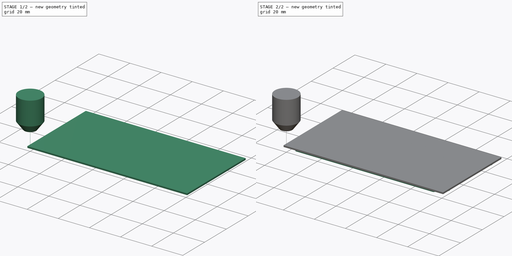
[diagram: build sequence overview — one tinted view per stage of 2, left to right]
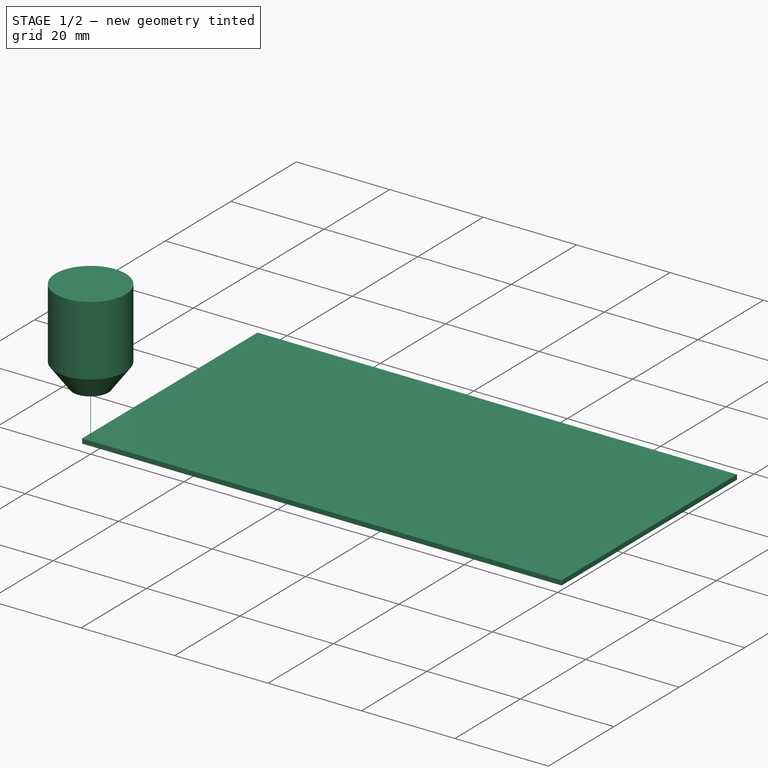
[diagram: stage 1 of 2 — iso view after this stage's code; geometry added in this stage tinted green]
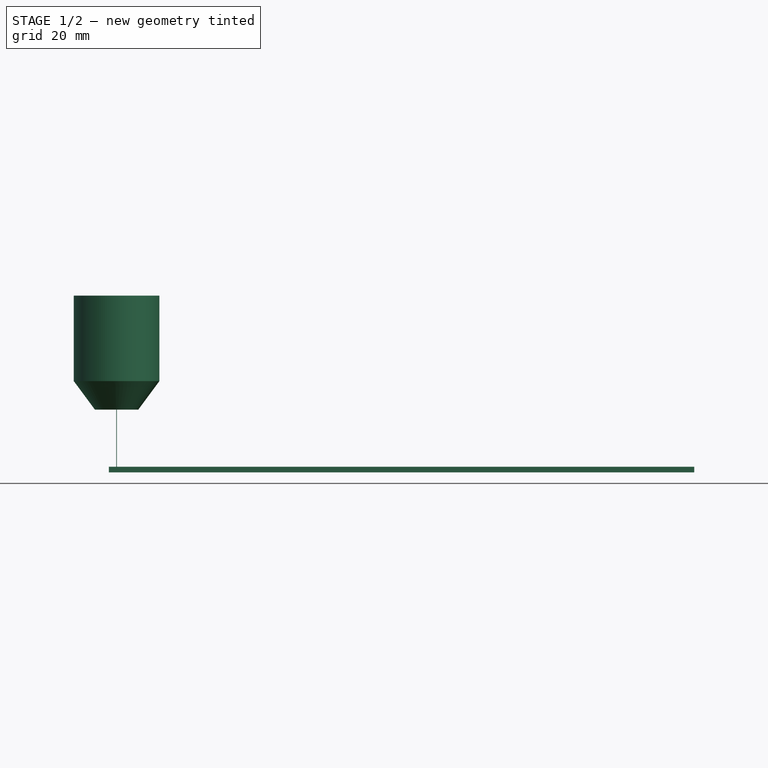
[diagram: stage 1 of 2 — front view after this stage's code; geometry added in this stage tinted green]
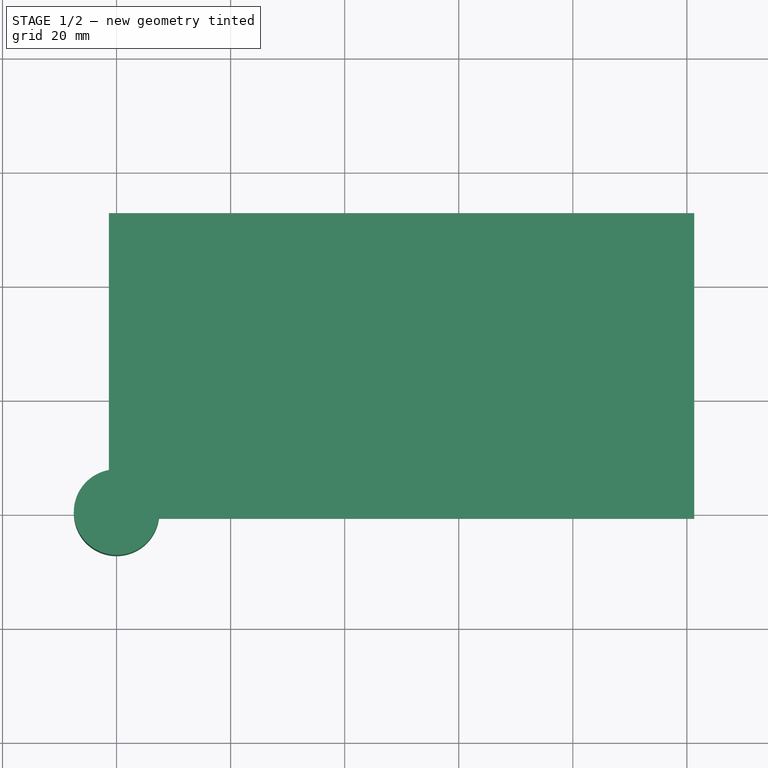
[diagram: stage 1 of 2 — top view after this stage's code; geometry added in this stage tinted green]
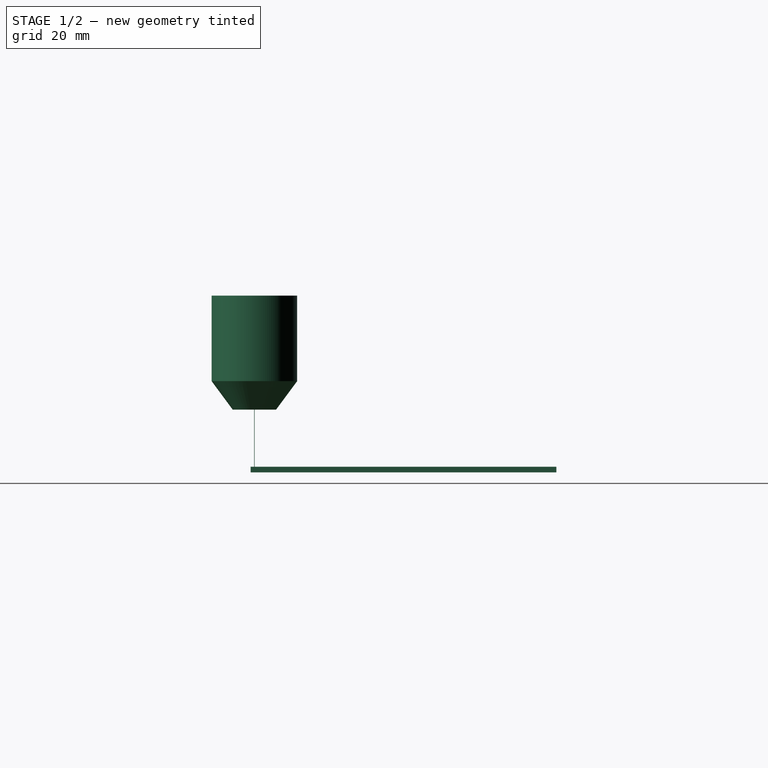
[diagram: stage 1 of 2 — right view after this stage's code; geometry added in this stage tinted green]
FCSTD DOCUMENT  (FreeCAD 0.20R25747 (Git))
Label: benchmark
License: All rights reserved
LicenseURL: http://en.wikipedia.org/wiki/All_rights_reserved
objects: Path::FeaturePython×3, Sketcher::SketchObject×2, App::DocumentObjectGroup×2, Part::FeaturePython×2, Part::Extrusion×1, App::FeaturePython×1, Part::Part2DObjectPython×1, Path::FeatureCompoundPython×1
note: 6 computed .brp shape members not serialized (recipe doc carries the construction recipe); baked Part::Feature solids carry a one-line shape summary decoded from their .brp

FEATURE [App::FeaturePython] SetupSheet  # Path/CAM operation (typed FeaturePython)
  ClearanceHeightExpression = OpStockZMax+SetupSheet.ClearanceHeightOffset
  ClearanceHeightOffset = 5
  CoolantMode = 0
  CoolantModes = None | Flood | Mist
  FinalDepthExpression = OpFinalDepth
  HorizRapid = 60000
  SafeHeightExpression = OpStockZMax+SetupSheet.SafeHeightOffset
  SafeHeightOffset = 3
  StartDepthExpression = OpStartDepth
  StepDownExpression = OpToolDiameter
  VertRapid = 60000
FEATURE [Part::Part2DObjectPython] Clone2D  label="Model-Sketch"  # Draft 2D object (typed FeaturePython)
  Fuse = false
  Objects = -> [Sketch]
  PathResource = Model
  Scale = (1,1,1)
FEATURE [App::DocumentObjectGroup] Model
  Group = -> [Clone2D]
FEATURE [Part::FeaturePython] ToolBit  label="100um laser003"  # Path/CAM toolbit (typed FeaturePython)
  BitPropertyNames = Chipload | CuttingEdgeHeight | Diameter | Flutes | Length | Material | ShankDiameter
  BitShape = <userpath>/Documents/GitHub/FreeCADBuild/Mod\Path\Tools\Shape\laser.fcstd
  Chipload = 0
  CuttingEdgeHeight = 10
  Diameter = 0.1
  Flutes = 0
  Length = 30
  Material = 0
  ShankDiameter = 15
  ShapeName = laser
FEATURE [Path::FeaturePython] _00um_laser  label="100um laser001"  # Path/CAM operation (typed FeaturePython)
  HorizFeed = 10000
  HorizRapid = 60000
  SpindleDir = 0
  SpindleSpeed = 0
  Tool = -> ToolBit
  ToolNumber = 2
  VertFeed = 10000
  VertRapid = 60000
  expr: VertRapid = SetupSheet.VertRapid
  expr: HorizRapid = SetupSheet.HorizRapid
FEATURE [App::DocumentObjectGroup] Tools
  Group = -> [_00um_laser]
FEATURE [Part::FeaturePython] Stock  # WARN: FeaturePython — macro-defined, semantics opaque (R4)
  Base = -> Model
  ExtXneg = 1
  ExtXpos = 1
  ExtYneg = 1
  ExtYpos = 1
  ExtZneg = 1
  ExtZpos = 0
  Placement = pos=(-0.352662,0.338305,0) rot=(0,0,1;0rad)
  StockType = FromBase
FEATURE [Path::FeaturePython] Engrave  # Path/CAM operation (typed FeaturePython)
  Active = true
  Base = -> [Clone2D]
  ClearanceHeight = 5
  CoolantMode = None
  CycleTime = 00:00:00
  FinalDepth = 0
  OpFinalDepth = -0.1
  OpStartDepth = 0
  OpStockZMax = 0
  OpStockZMin = -1
  OpToolDiameter = 0.1
  SafeHeight = 3
  StartDepth = 0
  StartVertex = 0
  StepDown = 0
  ToolController = -> _00um_laser
  expr: StartDepth = OpStartDepth
  expr: SafeHeight = OpStockZMax + SetupSheet.SafeHeightOffset
  expr: ClearanceHeight = OpStockZMax + SetupSheet.ClearanceHeightOffset
  expr: StepDown = 0
FEATURE [Path::FeatureCompoundPython] Operations  # Path/CAM operation (typed FeaturePython)
  Group = -> [Engrave]
  UsePlacements = false
FEATURE [Path::FeaturePython] Job  # Path/CAM operation (typed FeaturePython)
  CycleTime = 00:00:00
  Fixtures = G54
  GeometryTolerance = 0.01
  Model = -> Model
  Operations = -> Operations
  OrderOutputBy = 0
  PostProcessor = 7
  SetupSheet = -> SetupSheet
  SplitOutput = false
  Stock = -> Stock
  Tools = -> Tools
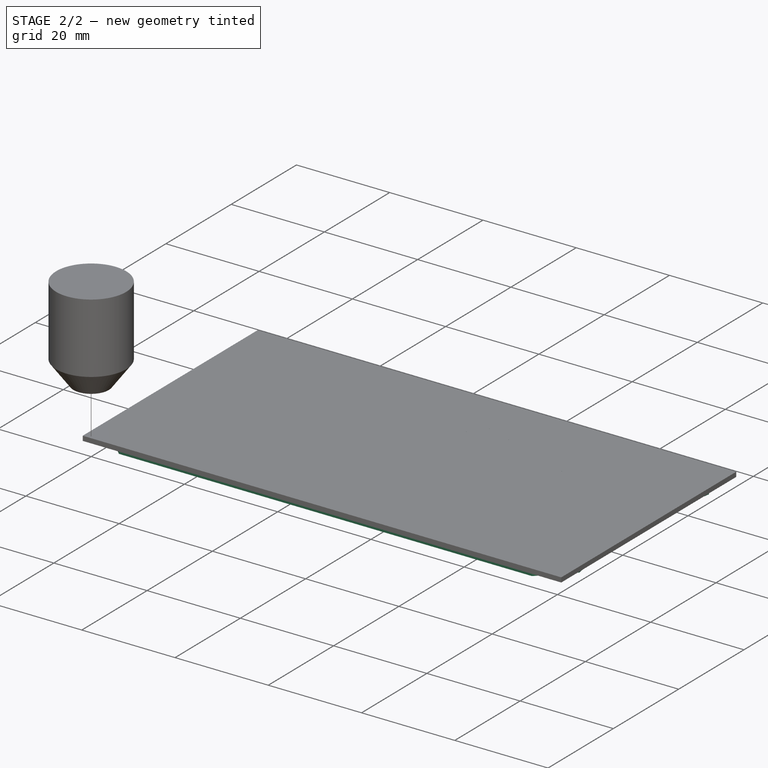
[diagram: stage 2 of 2 — iso view after this stage's code; geometry added in this stage tinted green]
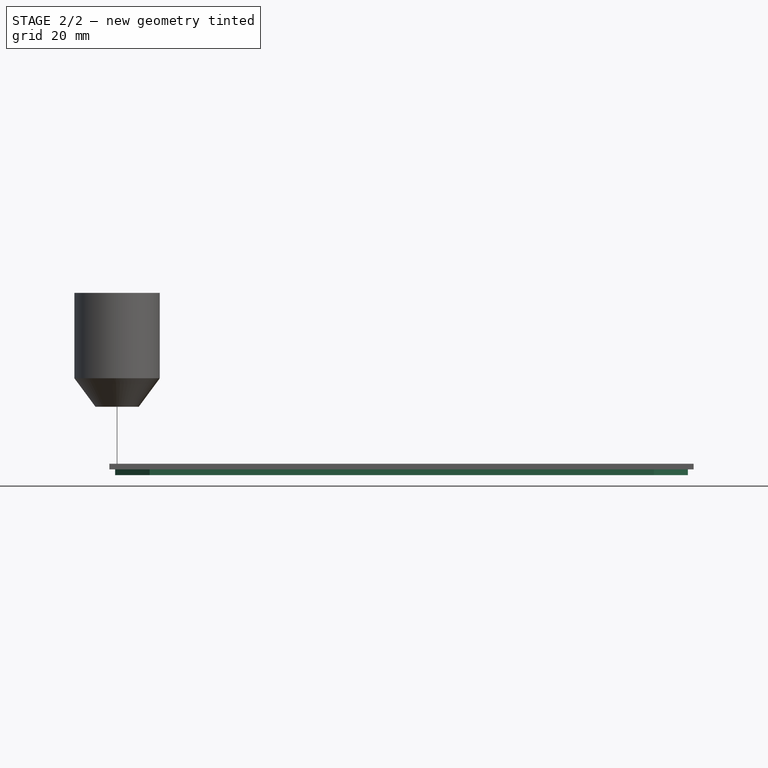
[diagram: stage 2 of 2 — front view after this stage's code; geometry added in this stage tinted green]
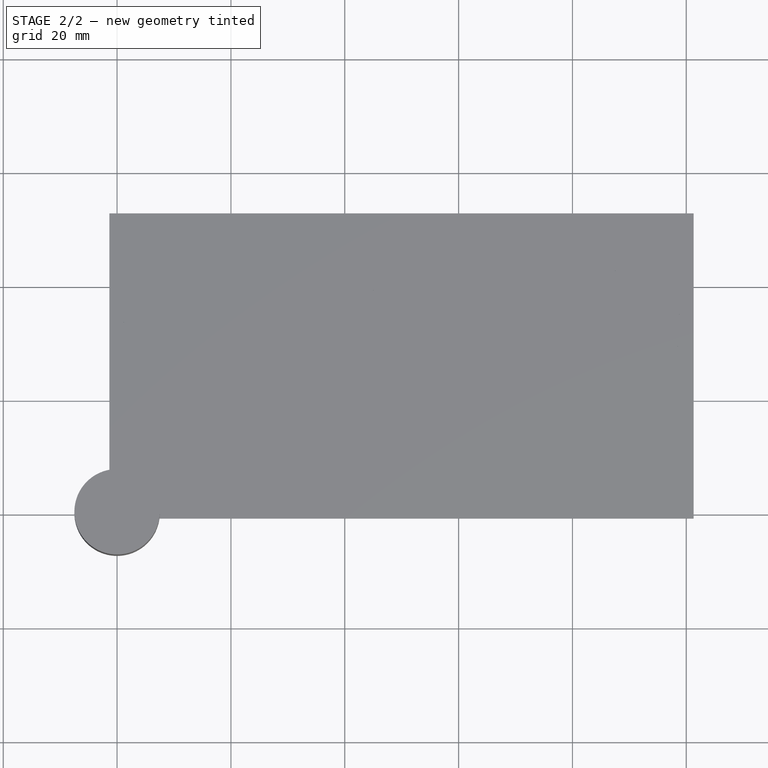
[diagram: stage 2 of 2 — top view after this stage's code; geometry added in this stage tinted green]
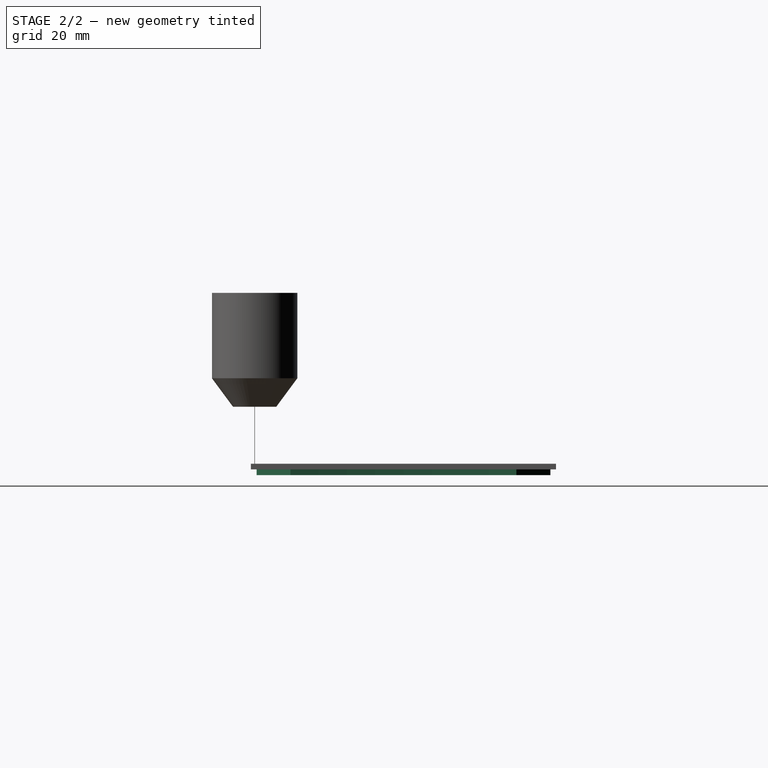
[diagram: stage 2 of 2 — right view after this stage's code; geometry added in this stage tinted green]
FEATURE [Sketcher::SketchObject] Sketch
  FullyConstrained = false
  sketch-geometry (481):
    g0: ArcOfCircle CenterX=47.4505 CenterY=39.9277 CenterZ=0 NormalX=0 NormalY=0 NormalZ=1 AngleXU=0 Radius=2.59564 StartAngle=0.0270204 EndAngle=0.295794
    g1: LineSegment StartX=10.2812 StartY=33.6371 StartZ=0 EndX=12.9977 EndY=33.6371 EndZ=0
    g2: LineSegment StartX=12.9977 StartY=33.6371 StartZ=0 EndX=12.9977 EndY=38.4048 EndZ=0
    g3: LineSegment StartX=12.9977 StartY=38.4048 StartZ=0 EndX=14.9185 EndY=38.4048 EndZ=0
    g4: LineSegment StartX=14.9185 StartY=38.4048 StartZ=0 EndX=14.9185 EndY=40.2845 EndZ=0
    g5: LineSegment StartX=14.9185 StartY=40.2845 StartZ=0 EndX=12.9977 EndY=40.2845 EndZ=0
    g6: LineSegment StartX=12.9977 StartY=40.2845 StartZ=0 EndX=12.9977 EndY=42.3132 EndZ=0
    g7: LineSegment StartX=12.9977 StartY=42.3132 StartZ=0 EndX=17.7295 EndY=42.3132 EndZ=0
    g8: LineSegment StartX=17.7295 StartY=42.3132 StartZ=0 EndX=17.7295 EndY=45.8136 EndZ=0
    g9: LineSegment StartX=17.7295 StartY=45.8136 StartZ=0 EndX=10.2812 EndY=45.8205 EndZ=0
    g10: LineSegment StartX=10.2812 StartY=45.8205 StartZ=0 EndX=10.2812 EndY=33.6371 EndZ=0
    g11: LineSegment StartX=21.4528 StartY=41.066 StartZ=0 EndX=20.755 EndY=41.3082 EndZ=0
    g12: LineSegment StartX=20.755 StartY=41.3082 StartZ=0 EndX=20.0893 EndY=43.0096 EndZ=0
    g13: LineSegment StartX=20.0893 StartY=43.0096 StartZ=0 EndX=19.042 EndY=42.9546 EndZ=0
    g14: LineSegment StartX=19.042 StartY=42.9546 StartZ=0 EndX=18.5643 EndY=41.1952 EndZ=0
    g15: LineSegment StartX=18.5643 StartY=41.1952 StartZ=0 EndX=17.8958 EndY=40.875 EndZ=0
    g16: LineSegment StartX=17.8958 StartY=40.875 StartZ=0 EndX=16.2283 EndY=41.6045 EndZ=0
    g17: LineSegment StartX=16.2283 StartY=41.6045 StartZ=0 EndX=15.524 EndY=40.8218 EndZ=0
    g18: LineSegment StartX=15.524 StartY=40.8218 StartZ=0 EndX=16.4306 EndY=39.2417 EndZ=0
    g19: LineSegment StartX=16.4306 StartY=39.2417 StartZ=0 EndX=16.1829 EndY=38.5459 EndZ=0
    g20: LineSegment StartX=16.1829 StartY=38.5459 StartZ=0 EndX=14.4815 EndY=37.8802 EndZ=0
    g21: LineSegment StartX=14.4815 StartY=37.8802 StartZ=0 EndX=14.5421 EndY=36.8309 EndZ=0
    g22: LineSegment StartX=14.5421 StartY=36.8309 StartZ=0 EndX=16.3015 EndY=36.3532 EndZ=0
    g23: LineSegment StartX=16.3015 StartY=36.3532 StartZ=0 EndX=16.6216 EndY=35.6847 EndZ=0
    g24: LineSegment StartX=16.6216 StartY=35.6847 StartZ=0 EndX=15.8866 EndY=34.0193 EndZ=0
    g25: LineSegment StartX=15.8866 StartY=34.0193 StartZ=0 EndX=16.6692 EndY=33.315 EndZ=0
    g26: LineSegment StartX=16.6692 StartY=33.315 StartZ=0 EndX=18.2494 EndY=34.2216 EndZ=0
    g27: LineSegment StartX=18.2494 StartY=34.2216 StartZ=0 EndX=18.9507 EndY=33.9718 EndZ=0
    g28: LineSegment StartX=18.9507 StartY=33.9718 StartZ=0 EndX=19.6109 EndY=32.2724 EndZ=0
    g29: LineSegment StartX=19.6109 StartY=32.2724 StartZ=0 EndX=20.6658 EndY=32.331 EndZ=0
    g30: LineSegment StartX=20.6658 StartY=32.331 StartZ=0 EndX=21.1379 EndY=34.0924 EndZ=0
    g31: LineSegment StartX=21.1379 StartY=34.0924 StartZ=0 EndX=21.8064 EndY=34.4126 EndZ=0
    g32: LineSegment StartX=21.8064 StartY=34.4126 StartZ=0 EndX=23.4774 EndY=33.6755 EndZ=0
    g33: LineSegment StartX=23.4774 StartY=33.6755 StartZ=0 EndX=24.1817 EndY=34.4581 EndZ=0
    g34: LineSegment StartX=24.1817 StartY=34.4581 StartZ=0 EndX=23.2751 EndY=36.0383 EndZ=0
    g35: LineSegment StartX=23.2751 StartY=36.0383 StartZ=0 EndX=23.5193 EndY=36.7417 EndZ=0
    g36: LineSegment StartX=23.5193 StartY=36.7417 StartZ=0 EndX=25.2187 EndY=37.4018 EndZ=0
    g37: LineSegment StartX=25.2187 StartY=37.4018 StartZ=0 EndX=25.1657 EndY=38.4547 EndZ=0
    g38: LineSegment StartX=25.1657 StartY=38.4547 StartZ=0 EndX=23.4043 EndY=38.9268 EndZ=0
    g39: LineSegment StartX=23.4043 StartY=38.9268 StartZ=0 EndX=23.0841 EndY=39.5953 EndZ=0
    g40: LineSegment StartX=23.0841 StartY=39.5953 StartZ=0 EndX=23.8156 EndY=41.2683 EndZ=0
    g41: LineSegment StartX=23.8156 StartY=41.2683 StartZ=0 EndX=23.033 EndY=41.9726 EndZ=0
    g42: LineSegment StartX=23.033 StartY=41.9726 StartZ=0 EndX=21.4528 EndY=41.066 EndZ=0
    g43: ArcOfCircle CenterX=90.3735 CenterY=9.52953 CenterZ=0 NormalX=0 NormalY=0 NormalZ=1 AngleXU=0 Radius=7.73922 StartAngle=2.67318 EndAngle=3.18293
    g44: ArcOfCircle CenterX=77.0888 CenterY=9.45559 CenterZ=0 NormalX=0 NormalY=0 NormalZ=1 AngleXU=0 Radius=7.7496 StartAngle=6.253 EndAngle=6.7613
    g45: ArcOfCircle CenterX=102.269 CenterY=11.1676 CenterZ=0 NormalX=0 NormalY=0 NormalZ=1 AngleXU=0 Radius=19.7251 StartAngle=3.24102 EndAngle=3.49532
    g46: ArcOfCircle CenterX=65.1868 CenterY=10.9639 CenterZ=0 NormalX=0 NormalY=0 NormalZ=1 AngleXU=0 Radius=19.7251 StartAngle=5.94044 EndAngle=6.19475
    g47: LineSegment StartX=86.1753 StartY=10.764 StartZ=0 EndX=84.4017 EndY=13.1765 EndZ=0
    g48: LineSegment StartX=86.4655 StartY=10.9773 StartZ=0 EndX=84.6903 EndY=13.3927 EndZ=0
    g49: ArcOfCircle CenterX=91.2945 CenterY=8.73848 CenterZ=0 NormalX=0 NormalY=0 NormalZ=1 AngleXU=0 Radius=5.50538 StartAngle=2.76483 EndAngle=3.39668
    g50: ArcOfCircle CenterX=89.6035 CenterY=1.37013 CenterZ=0 NormalX=0 NormalY=0 NormalZ=1 AngleXU=0 Radius=3.6706 StartAngle=1.25686 EndAngle=2.11524
    g51: ArcOfCircle CenterX=81.498 CenterY=2.66843 CenterZ=0 NormalX=0 NormalY=0 NormalZ=1 AngleXU=0 Radius=6.47186 StartAngle=0.288539 EndAngle=0.808522
    g52: ArcOfCircle CenterX=94.4074 CenterY=4.90085 CenterZ=0 NormalX=0 NormalY=0 NormalZ=1 AngleXU=0 Radius=3.6706 StartAngle=2.29397 EndAngle=3.15236
    g53: ArcOfCircle CenterX=86.7631 CenterY=5.21385 CenterZ=0 NormalX=0 NormalY=0 NormalZ=1 AngleXU=0 Radius=5.77109 StartAngle=1.02623 EndAngle=1.62239
    g54: ArcOfCircle CenterX=95.4966 CenterY=13.0282 CenterZ=0 NormalX=0 NormalY=0 NormalZ=1 AngleXU=0 Radius=6.42447 StartAngle=3.60609 EndAngle=4.13285
    g55: ArcOfCircle CenterX=90.3904 CenterY=19.2117 CenterZ=0 NormalX=0 NormalY=0 NormalZ=1 AngleXU=0 Radius=7.73922 StartAngle=3.93025 EndAngle=4.43957
    g56: ArcOfCircle CenterX=86.3555 CenterY=6.55437 CenterZ=0 NormalX=0 NormalY=0 NormalZ=1 AngleXU=0 Radius=7.7496 StartAngle=1.22645 EndAngle=1.73474
    g57: ArcOfCircle CenterX=92.5083 CenterY=31.0308 CenterZ=0 NormalX=0 NormalY=0 NormalZ=1 AngleXU=0 Radius=19.7251 StartAngle=4.49765 EndAngle=4.75196
    g58: ArcOfCircle CenterX=81.2431 CenterY=-4.299 CenterZ=0 NormalX=0 NormalY=0 NormalZ=1 AngleXU=0 Radius=19.7251 StartAngle=0.913893 EndAngle=1.1682
    g59: LineSegment StartX=87.9222 StartY=15.6022 StartZ=0 EndX=85.0777 EndY=14.6603 EndZ=0
    g60: LineSegment StartX=87.809 StartY=15.9441 StartZ=0 EndX=84.9593 EndY=15.0008 EndZ=0
    g61: ArcOfCircle CenterX=91.4305 CenterY=19.8449 CenterZ=0 NormalX=0 NormalY=0 NormalZ=1 AngleXU=0 Radius=5.50538 StartAngle=4.02147 EndAngle=4.65332
    g62: ArcOfCircle CenterX=97.9157 CenterY=15.9598 CenterZ=0 NormalX=0 NormalY=0 NormalZ=1 AngleXU=0 Radius=3.6706 StartAngle=2.51349 EndAngle=3.37188
    g63: ArcOfCircle CenterX=94.1762 CenterY=8.65218 CenterZ=0 NormalX=0 NormalY=0 NormalZ=1 AngleXU=0 Radius=6.47186 StartAngle=1.54518 EndAngle=2.06516
    g64: ArcOfCircle CenterX=96.0422 CenterY=21.6196 CenterZ=0 NormalX=0 NormalY=0 NormalZ=1 AngleXU=0 Radius=3.6706 StartAngle=3.55061 EndAngle=4.409
    g65: ArcOfCircle CenterX=93.3823 CenterY=14.4462 CenterZ=0 NormalX=0 NormalY=0 NormalZ=1 AngleXU=0 Radius=5.77109 StartAngle=2.28287 EndAngle=2.87903
    g66: ArcOfCircle CenterX=88.6493 CenterY=25.1669 CenterZ=0 NormalX=0 NormalY=0 NormalZ=1 AngleXU=0 Radius=6.42447 StartAngle=4.86273 EndAngle=5.38949
    g67: ArcOfCircle CenterX=81.1869 CenterY=22.2239 CenterZ=0 NormalX=0 NormalY=0 NormalZ=1 AngleXU=0 Radius=7.73922 StartAngle=5.18598 EndAngle=5.69621
    g68: ArcOfCircle CenterX=91.9779 CenterY=14.4752 CenterZ=0 NormalX=0 NormalY=0 NormalZ=1 AngleXU=0 Radius=7.7496 StartAngle=2.48309 EndAngle=2.99248
    g69: ArcOfCircle CenterX=70.6008 CenterY=27.8905 CenterZ=0 NormalX=0 NormalY=0 NormalZ=1 AngleXU=0 Radius=19.7251 StartAngle=5.75429 EndAngle=6.0086
    g70: ArcOfCircle CenterX=100.72 CenterY=6.25917 CenterZ=0 NormalX=0 NormalY=0 NormalZ=1 AngleXU=0 Radius=19.7251 StartAngle=2.17053 EndAngle=2.42484
    g71: LineSegment StartX=83.8606 StartY=18.7587 StartZ=0 EndX=83.8775 EndY=15.7536 EndZ=0
    g72: LineSegment StartX=83.5005 StartY=18.7567 StartZ=0 EndX=83.517 EndY=15.7463 EndZ=0
    g73: ArcOfCircle CenterX=80.9096 CenterY=23.4063 CenterZ=0 NormalX=0 NormalY=0 NormalZ=1 AngleXU=0 Radius=5.50538 StartAngle=5.27811 EndAngle=5.90995
    g74: ArcOfCircle CenterX=86.6087 CenterY=28.3735 CenterZ=0 NormalX=0 NormalY=0 NormalZ=1 AngleXU=0 Radius=3.6706 StartAngle=3.77013 EndAngle=4.62852
    g75: ArcOfCircle CenterX=92.403 CenterY=22.5589 CenterZ=0 NormalX=0 NormalY=0 NormalZ=1 AngleXU=0 Radius=6.47186 StartAngle=2.80181 EndAngle=3.3218
    g76: ArcOfCircle CenterX=80.647 CenterY=28.3408 CenterZ=0 NormalX=0 NormalY=0 NormalZ=1 AngleXU=0 Radius=3.6706 StartAngle=4.80725 EndAngle=5.66563
    g77: ArcOfCircle CenterX=86.6473 CenterY=23.5943 CenterZ=0 NormalX=0 NormalY=0 NormalZ=1 AngleXU=0 Radius=5.77109 StartAngle=3.53951 EndAngle=4.13567
    g78: ArcOfCircle CenterX=74.9887 CenterY=22.4058 CenterZ=0 NormalX=0 NormalY=0 NormalZ=1 AngleXU=0 Radius=6.42447 StartAngle=6.11937 EndAngle=6.64613
    g79: ArcOfCircle CenterX=75.4781 CenterY=14.4018 CenterZ=0 NormalX=0 NormalY=0 NormalZ=1 AngleXU=0 Radius=7.73922 StartAngle=0.15845 EndAngle=0.66966
    g80: ArcOfCircle CenterX=86.1821 CenterY=22.2701 CenterZ=0 NormalX=0 NormalY=0 NormalZ=1 AngleXU=0 Radius=7.7496 StartAngle=3.73973 EndAngle=4.24982
    g81: ArcOfCircle CenterX=66.8176 CenterY=6.08479 CenterZ=0 NormalX=0 NormalY=0 NormalZ=1 AngleXU=0 Radius=19.7251 StartAngle=0.727743 EndAngle=0.982049
    g82: ArcOfCircle CenterX=96.6976 CenterY=28.0457 CenterZ=0 NormalX=0 NormalY=0 NormalZ=1 AngleXU=0 Radius=19.7251 StartAngle=3.42717 EndAngle=3.68147
    g83: LineSegment StartX=79.6035 StartY=15.8713 StartZ=0 EndX=82.4699 EndY=14.9577 EndZ=0
    g84: LineSegment StartX=79.4941 StartY=15.5281 StartZ=0 EndX=82.3633 EndY=14.6133 EndZ=0
    g85: ArcOfCircle CenterX=74.2714 CenterY=14.5009 CenterZ=0 NormalX=0 NormalY=0 NormalZ=1 AngleXU=0 Radius=5.50538 StartAngle=0.25156 EndAngle=0.883404
    g86: ArcOfCircle CenterX=71.3085 CenterY=21.456 CenterZ=0 NormalX=0 NormalY=0 NormalZ=1 AngleXU=0 Radius=3.6706 StartAngle=5.02677 EndAngle=5.88515
    g87: ArcOfCircle CenterX=78.6291 CenterY=25.1699 CenterZ=0 NormalX=0 NormalY=0 NormalZ=1 AngleXU=0 Radius=6.47186 StartAngle=4.05845 EndAngle=4.57843
    g88: ArcOfCircle CenterX=69.4973 CenterY=15.7759 CenterZ=0 NormalX=0 NormalY=0 NormalZ=1 AngleXU=0 Radius=3.6706 StartAngle=6.06388 EndAngle=6.92227
    g89: ArcOfCircle CenterX=75.8657 CenterY=20.0159 CenterZ=0 NormalX=0 NormalY=0 NormalZ=1 AngleXU=0 Radius=5.77109 StartAngle=4.79614 EndAngle=5.3923
    g90: ArcOfCircle CenterX=73.3933 CenterY=8.56058 CenterZ=0 NormalX=0 NormalY=0 NormalZ=1 AngleXU=0 Radius=6.42447 StartAngle=1.09282 EndAngle=1.61958
    g91: ArcOfCircle CenterX=81.1572 CenterY=6.55687 CenterZ=0 NormalX=0 NormalY=0 NormalZ=1 AngleXU=0 Radius=7.73922 StartAngle=1.41538 EndAngle=1.9263
    g92: ArcOfCircle CenterX=76.9817 CenterY=19.1685 CenterZ=0 NormalX=0 NormalY=0 NormalZ=1 AngleXU=0 Radius=7.7496 StartAngle=4.99636 EndAngle=5.50578
    g93: ArcOfCircle CenterX=86.3909 CenterY=-4.24987 CenterZ=0 NormalX=0 NormalY=0 NormalZ=1 AngleXU=0 Radius=19.7251 StartAngle=1.98438 EndAngle=2.23869
    g94: ArcOfCircle CenterX=74.7383 CenterY=30.954 CenterZ=0 NormalX=0 NormalY=0 NormalZ=1 AngleXU=0 Radius=19.7251 StartAngle=4.6838 EndAngle=4.93811
    g95: LineSegment StartX=81.0341 StartY=10.9303 StartZ=0 EndX=82.7849 EndY=13.3687 EndZ=0
    g96: LineSegment StartX=81.3266 StartY=10.7202 StartZ=0 EndX=83.0788 EndY=13.1599 EndZ=0
    g97: ArcOfCircle CenterX=80.6897 CenterY=5.4357 CenterZ=0 NormalX=0 NormalY=0 NormalZ=1 AngleXU=0 Radius=5.50538 StartAngle=1.5082 EndAngle=2.14004
    g98: ArcOfCircle CenterX=73.1594 CenterY=4.767 CenterZ=0 NormalX=0 NormalY=0 NormalZ=1 AngleXU=0 Radius=3.6706 StartAngle=0.000218101 EndAngle=0.858605
    g99: ArcOfCircle CenterX=71.8894 CenterY=12.877 CenterZ=0 NormalX=0 NormalY=0 NormalZ=1 AngleXU=0 Radius=6.47186 StartAngle=5.31509 EndAngle=5.83507
    g100: ArcOfCircle CenterX=78.0018 CenterY=1.28927 CenterZ=0 NormalX=0 NormalY=0 NormalZ=1 AngleXU=0 Radius=3.6706 StartAngle=1.03734 EndAngle=1.89572
    g101: ArcOfCircle CenterX=75.9372 CenterY=8.65613 CenterZ=0 NormalX=0 NormalY=0 NormalZ=1 AngleXU=0 Radius=5.77109 StartAngle=6.05278 EndAngle=6.64894
    g102: ArcOfCircle CenterX=86.0679 CenterY=2.76488 CenterZ=0 NormalX=0 NormalY=0 NormalZ=1 AngleXU=0 Radius=6.42447 StartAngle=2.34946 EndAngle=2.87622
    g103: ArcOfCircle CenterX=83.6954 CenterY=14.358 CenterZ=0 NormalX=0 NormalY=0 NormalZ=1 AngleXU=0 Radius=1.34459 StartAngle=3.62535 EndAngle=3.96844
    g104: ArcOfCircle CenterX=83.725 CenterY=14.3807 CenterZ=0 NormalX=0 NormalY=0 NormalZ=1 AngleXU=0 Radius=1.38133 StartAngle=4.22557 EndAngle=4.52518
    g105: ArcOfCircle CenterX=83.7375 CenterY=14.3457 CenterZ=0 NormalX=0 NormalY=0 NormalZ=1 AngleXU=0 Radius=1.34463 StartAngle=4.8857 EndAngle=5.22899
    g106: ArcOfCircle CenterX=83.8442 CenterY=14.3951 CenterZ=0 NormalX=0 NormalY=0 NormalZ=1 AngleXU=0 Radius=1.26173 StartAngle=6.12795 EndAngle=6.4949
    g107: ArcOfCircle CenterX=83.8593 CenterY=14.4614 CenterZ=0 NormalX=0 NormalY=0 NormalZ=1 AngleXU=0 Radius=1.22516 StartAngle=0.455931 EndAngle=0.795631
    g108: ArcOfCircle CenterX=83.74 CenterY=14.4672 CenterZ=0 NormalX=0 NormalY=0 NormalZ=1 AngleXU=0 Radius=1.29378 StartAngle=1.11085 EndAngle=1.46432
    g109: ArcOfCircle CenterX=83.755 CenterY=14.282 CenterZ=0 NormalX=0 NormalY=0 NormalZ=1 AngleXU=0 Radius=1.48355 StartAngle=1.7319 EndAngle=2.01282
    g110: ArcOfCircle CenterX=83.7699 CenterY=14.3566 CenterZ=0 NormalX=0 NormalY=0 NormalZ=1 AngleXU=0 Radius=1.43225 StartAngle=2.38963 EndAngle=2.70852
    g111: ArcOfCircle CenterX=83.725 CenterY=14.3807 CenterZ=0 NormalX=0 NormalY=0 NormalZ=1 AngleXU=0 Radius=1.38133 StartAngle=2.97245 EndAngle=3.27076
    g112: LineSegment StartX=5.7121 StartY=0.338305 StartZ=0 EndX=94.315 EndY=0.338305 EndZ=0
    g113: LineSegment StartX=5.70485 StartY=51.9511 StartZ=0 EndX=94.3206 EndY=51.9511 EndZ=0
    g114: ArcOfCircle CenterX=-106.388 CenterY=26.0023 CenterZ=0 NormalX=0 NormalY=0 NormalZ=1 AngleXU=0 Radius=107.885 StartAngle=6.10007 EndAngle=6.46862
    g115: ArcOfCircle CenterX=202.807 CenterY=26.1447 CenterZ=0 NormalX=0 NormalY=0 NormalZ=1 AngleXU=0 Radius=104.421 StartAngle=2.95044 EndAngle=3.3327
    g116: LineSegment StartX=32.7652 StartY=16.0116 StartZ=0 EndX=33.2814 EndY=17.56 EndZ=0
    g117: LineSegment StartX=33.2814 StartY=17.56 StartZ=0 EndX=33.7975 EndY=16.0116 EndZ=0
    g118: LineSegment StartX=33.7975 StartY=16.0116 StartZ=0 EndX=34.3136 EndY=17.56 EndZ=0
    g119: LineSegment StartX=34.3136 StartY=17.56 StartZ=0 EndX=34.8297 EndY=16.0116 EndZ=0
    g120: LineSegment StartX=34.8297 StartY=16.0116 StartZ=0 EndX=35.3459 EndY=17.56 EndZ=0
    g121: LineSegment StartX=35.3459 StartY=17.56 StartZ=0 EndX=35.862 EndY=16.0116 EndZ=0
    g122: LineSegment StartX=65.7974 StartY=16.0116 StartZ=0 EndX=65.2813 EndY=17.56 EndZ=0
    g123: LineSegment StartX=65.2813 StartY=17.56 StartZ=0 EndX=64.7652 EndY=16.0116 EndZ=0
    g124: LineSegment StartX=64.7652 StartY=16.0116 StartZ=0 EndX=64.249 EndY=17.56 EndZ=0
    g125: LineSegment StartX=64.249 StartY=17.56 StartZ=0 EndX=63.7329 EndY=16.0116 EndZ=0
    g126: LineSegment StartX=63.7329 StartY=16.0116 StartZ=0 EndX=63.2168 EndY=17.56 EndZ=0
    g127: LineSegment StartX=63.2168 StartY=17.56 StartZ=0 EndX=62.7006 EndY=16.0116 EndZ=0
    g128: LineSegment StartX=62.7006 StartY=16.0116 StartZ=0 EndX=62.1845 EndY=17.56 EndZ=0
    g129: LineSegment StartX=62.1845 StartY=17.56 StartZ=0 EndX=61.6684 EndY=16.0116 EndZ=0
    g130: LineSegment StartX=61.6684 StartY=16.0116 StartZ=0 EndX=61.1523 EndY=17.56 EndZ=0
    g131: LineSegment StartX=61.1523 StartY=17.56 StartZ=0 EndX=60.6361 EndY=16.0116 EndZ=0
    g132: LineSegment StartX=60.6361 StartY=16.0116 StartZ=0 EndX=60.12 EndY=17.56 EndZ=0
    g133: LineSegment StartX=60.12 StartY=17.56 StartZ=0 EndX=59.6039 EndY=16.0116 EndZ=0
    g134: LineSegment StartX=59.6039 StartY=16.0116 StartZ=0 EndX=59.0878 EndY=17.56 EndZ=0
    g135: LineSegment StartX=59.0878 StartY=17.56 StartZ=0 EndX=58.5716 EndY=16.0116 EndZ=0
    g136: LineSegment StartX=58.5716 StartY=16.0116 StartZ=0 EndX=58.0555 EndY=17.56 EndZ=0
    g137: LineSegment StartX=58.0555 StartY=17.56 StartZ=0 EndX=57.5394 EndY=16.0116 EndZ=0
    g138: LineSegment StartX=57.5394 StartY=16.0116 StartZ=0 EndX=57.0232 EndY=17.56 EndZ=0
    g139: LineSegment StartX=57.0232 StartY=17.56 StartZ=0 EndX=56.5071 EndY=16.0116 EndZ=0
    g140: LineSegment StartX=56.5071 StartY=16.0116 StartZ=0 EndX=55.991 EndY=17.56 EndZ=0
    g141: LineSegment StartX=55.991 StartY=17.56 StartZ=0 EndX=55.4749 EndY=16.0116 EndZ=0
    g142: LineSegment StartX=55.4749 StartY=16.0116 StartZ=0 EndX=54.9587 EndY=17.56 EndZ=0
    g143: LineSegment StartX=54.9587 StartY=17.56 StartZ=0 EndX=54.4426 EndY=16.0116 EndZ=0
    g144: LineSegment StartX=54.4426 StartY=16.0116 StartZ=0 EndX=53.9265 EndY=17.56 EndZ=0
    g145: LineSegment StartX=53.9265 StartY=17.56 StartZ=0 EndX=53.4103 EndY=16.0116 EndZ=0
    g146: LineSegment StartX=53.4103 StartY=16.0116 StartZ=0 EndX=52.8942 EndY=17.56 EndZ=0
    g147: LineSegment StartX=52.8942 StartY=17.56 StartZ=0 EndX=52.3781 EndY=16.0116 EndZ=0
    g148: LineSegment StartX=52.3781 StartY=16.0116 StartZ=0 EndX=51.862 EndY=17.56 EndZ=0
    g149: LineSegment StartX=51.862 StartY=17.56 StartZ=0 EndX=51.3458 EndY=16.0116 EndZ=0
    g150: LineSegment StartX=51.3458 StartY=16.0116 StartZ=0 EndX=50.8297 EndY=17.56 EndZ=0
    g151: LineSegment StartX=50.8297 StartY=17.56 StartZ=0 EndX=50.3136 EndY=16.0116 EndZ=0
    g152: LineSegment StartX=50.3136 StartY=16.0116 StartZ=0 EndX=49.7974 EndY=17.56 EndZ=0
    g153: LineSegment StartX=49.7974 StartY=17.56 StartZ=0 EndX=49.2813 EndY=16.0116 EndZ=0
    g154: LineSegment StartX=49.2813 StartY=16.0116 StartZ=0 EndX=48.7652 EndY=17.56 EndZ=0
    g155: LineSegment StartX=48.7652 StartY=17.56 StartZ=0 EndX=48.2491 EndY=16.0116 EndZ=0
    g156: LineSegment StartX=48.2491 StartY=16.0116 StartZ=0 EndX=47.7329 EndY=17.56 EndZ=0
    g157: LineSegment StartX=47.7329 StartY=17.56 StartZ=0 EndX=47.2168 EndY=16.0116 EndZ=0
    g158: LineSegment StartX=47.2168 StartY=16.0116 StartZ=0 EndX=46.7007 EndY=17.56 EndZ=0
    g159: LineSegment StartX=46.7007 StartY=17.56 StartZ=0 EndX=46.1846 EndY=16.0116 EndZ=0
    g160: LineSegment StartX=46.1846 StartY=16.0116 StartZ=0 EndX=45.6684 EndY=17.56 EndZ=0
    g161: LineSegment StartX=45.6684 StartY=17.56 StartZ=0 EndX=45.1523 EndY=16.0116 EndZ=0
    g162: LineSegment StartX=45.1523 StartY=16.0116 StartZ=0 EndX=44.6362 EndY=17.56 EndZ=0
    g163: LineSegment StartX=44.6362 StartY=17.56 StartZ=0 EndX=44.12 EndY=16.0116 EndZ=0
    g164: LineSegment StartX=44.12 StartY=16.0116 StartZ=0 EndX=43.6039 EndY=17.56 EndZ=0
    g165: LineSegment StartX=43.6039 StartY=17.56 StartZ=0 EndX=43.0878 EndY=16.0116 EndZ=0
    g166: LineSegment StartX=43.0878 StartY=16.0116 StartZ=0 EndX=42.5717 EndY=17.56 EndZ=0
    g167: LineSegment StartX=42.5717 StartY=17.56 StartZ=0 EndX=42.0555 EndY=16.0116 EndZ=0
    g168: LineSegment StartX=42.0555 StartY=16.0116 StartZ=0 EndX=41.5394 EndY=17.56 EndZ=0
    g169: LineSegment StartX=41.5394 StartY=17.56 StartZ=0 EndX=41.0233 EndY=16.0116 EndZ=0
    g170: LineSegment StartX=41.0233 StartY=16.0116 StartZ=0 EndX=40.5071 EndY=17.56 EndZ=0
    g171: LineSegment StartX=40.5071 StartY=17.56 StartZ=0 EndX=39.991 EndY=16.0116 EndZ=0
    g172: LineSegment StartX=39.991 StartY=16.0116 StartZ=0 EndX=39.4749 EndY=17.56 EndZ=0
    g173: LineSegment StartX=39.4749 StartY=17.56 StartZ=0 EndX=38.9588 EndY=16.0116 EndZ=0
    g174: LineSegment StartX=38.9588 StartY=16.0116 StartZ=0 EndX=38.4426 EndY=17.56 EndZ=0
    g175: LineSegment StartX=38.4426 StartY=17.56 StartZ=0 EndX=37.9265 EndY=16.0116 EndZ=0
    g176: LineSegment StartX=37.9265 StartY=16.0116 StartZ=0 EndX=37.4104 EndY=17.56 EndZ=0
    g177: LineSegment StartX=37.4104 StartY=17.56 StartZ=0 EndX=36.8942 EndY=16.0116 EndZ=0
    g178: LineSegment StartX=36.8942 StartY=16.0116 StartZ=0 EndX=36.3781 EndY=17.56 EndZ=0
    g179: LineSegment StartX=36.3781 StartY=17.56 StartZ=0 EndX=35.862 EndY=16.0116 EndZ=0
    g180: LineSegment StartX=29.6685 StartY=23.3945 StartZ=0 EndX=29.6685 EndY=6.56409 EndZ=0
    g181: LineSegment StartX=68.8942 StartY=23.3945 StartZ=0 EndX=68.8942 EndY=16.0116 EndZ=0
    g182: LineSegment StartX=31.2168 StartY=16.0116 StartZ=0 EndX=32.7652 EndY=16.0116 EndZ=0
    g183: LineSegment StartX=68.8942 StartY=16.0116 StartZ=0 EndX=65.7974 EndY=16.0116 EndZ=0
    g184: ArcOfCircle CenterX=33.7975 CenterY=9.66086 CenterZ=0 NormalX=0 NormalY=0 NormalZ=1 AngleXU=0 Radius=0.206451 StartAngle=0 EndAngle=3.14159
    g185: ArcOfCircle CenterX=35.862 CenterY=9.66086 CenterZ=0 NormalX=0 NormalY=0 NormalZ=1 AngleXU=0 Radius=0.206451 StartAngle=0 EndAngle=3.14159
    g186: ArcOfCircle CenterX=37.9265 CenterY=9.66086 CenterZ=0 NormalX=0 NormalY=0 NormalZ=1 AngleXU=0 Radius=0.206451 StartAngle=0 EndAngle=3.14159
    g187: ArcOfCircle CenterX=39.991 CenterY=9.66086 CenterZ=0 NormalX=0 NormalY=0 NormalZ=1 AngleXU=0 Radius=0.206451 StartAngle=0 EndAngle=3.14159
    g188: ArcOfCircle CenterX=42.0555 CenterY=9.66086 CenterZ=0 NormalX=0 NormalY=0 NormalZ=1 AngleXU=0 Radius=0.206451 StartAngle=0 EndAngle=3.14159
    g189: ArcOfCircle CenterX=44.12 CenterY=9.66086 CenterZ=0 NormalX=0 NormalY=0 NormalZ=1 AngleXU=0 Radius=0.206451 StartAngle=0 EndAngle=3.14159
    g190: LineSegment StartX=43.9136 StartY=9.66086 StartZ=0 EndX=45.1523 EndY=5.53184 EndZ=0
    g191: LineSegment StartX=43.0878 StartY=5.53184 StartZ=0 EndX=44.3265 EndY=9.66086 EndZ=0
    g192: LineSegment StartX=41.8491 StartY=9.66086 StartZ=0 EndX=43.0878 EndY=5.53184 EndZ=0
    g193: LineSegment StartX=41.0233 StartY=5.53184 StartZ=0 EndX=42.262 EndY=9.66086 EndZ=0
    g194: LineSegment StartX=39.7846 StartY=9.66086 StartZ=0 EndX=41.0233 EndY=5.53184 EndZ=0
    g195: LineSegment StartX=38.9588 StartY=5.53184 StartZ=0 EndX=40.1975 EndY=9.66086 EndZ=0
    g196: LineSegment StartX=37.7201 StartY=9.66086 StartZ=0 EndX=38.9588 EndY=5.53184 EndZ=0
    g197: LineSegment StartX=36.8942 StartY=5.53184 StartZ=0 EndX=38.133 EndY=9.66086 EndZ=0
    g198: LineSegment StartX=35.6555 StartY=9.66086 StartZ=0 EndX=36.8942 EndY=5.53184 EndZ=0
    g199: LineSegment StartX=34.8297 StartY=5.53184 StartZ=0 EndX=36.0684 EndY=9.66086 EndZ=0
    g200: LineSegment StartX=33.591 StartY=9.66086 StartZ=0 EndX=34.8297 EndY=5.53184 EndZ=0
    g201: LineSegment StartX=32.7652 StartY=5.53184 StartZ=0 EndX=34.0039 EndY=9.66086 EndZ=0
    g202: LineSegment StartX=32.7652 StartY=5.53184 StartZ=0 EndX=30.7007 EndY=5.53184 EndZ=0
    g203: LineSegment StartX=65.7974 StartY=5.53184 StartZ=0 EndX=67.8619 EndY=5.53184 EndZ=0
    g204: ArcOfCircle CenterX=46.1846 CenterY=9.66086 CenterZ=0 NormalX=0 NormalY=0 NormalZ=1 AngleXU=0 Radius=0.206451 StartAngle=0 EndAngle=3.14159
    g205: ArcOfCircle CenterX=48.2491 CenterY=9.66086 CenterZ=0 NormalX=0 NormalY=0 NormalZ=1 AngleXU=0 Radius=0.206451 StartAngle=0 EndAngle=3.14159
    g206: LineSegment StartX=48.0426 StartY=9.66086 StartZ=0 EndX=49.2813 EndY=5.53184 EndZ=0
    g207: LineSegment StartX=47.2168 StartY=5.53184 StartZ=0 EndX=48.4555 EndY=9.66086 EndZ=0
    g208: LineSegment StartX=45.9781 StartY=9.66086 StartZ=0 EndX=47.2168 EndY=5.53184 EndZ=0
    g209: LineSegment StartX=45.1523 StartY=5.53184 StartZ=0 EndX=46.391 EndY=9.66086 EndZ=0
    g210: ArcOfCircle CenterX=50.3136 CenterY=9.66086 CenterZ=0 NormalX=0 NormalY=0 NormalZ=1 AngleXU=0 Radius=0.206451 StartAngle=0 EndAngle=3.14159
    g211: ArcOfCircle CenterX=52.3781 CenterY=9.66086 CenterZ=0 NormalX=0 NormalY=0 NormalZ=1 AngleXU=0 Radius=0.206451 StartAngle=0 EndAngle=3.14159
    g212: ArcOfCircle CenterX=54.4426 CenterY=9.66086 CenterZ=0 NormalX=0 NormalY=0 NormalZ=1 AngleXU=0 Radius=0.206451 StartAngle=0 EndAngle=3.14159
    g213: ArcOfCircle CenterX=56.5071 CenterY=9.66086 CenterZ=0 NormalX=0 NormalY=0 NormalZ=1 AngleXU=0 Radius=0.206451 StartAngle=0 EndAngle=3.14159
    g214: ArcOfCircle CenterX=58.5716 CenterY=9.66086 CenterZ=0 NormalX=0 NormalY=0 NormalZ=1 AngleXU=0 Radius=0.206451 StartAngle=0 EndAngle=3.14159
    g215: ArcOfCircle CenterX=60.6361 CenterY=9.66086 CenterZ=0 NormalX=0 NormalY=0 NormalZ=1 AngleXU=0 Radius=0.206451 StartAngle=0 EndAngle=3.14159
    g216: LineSegment StartX=60.4297 StartY=9.66086 StartZ=0 EndX=61.6684 EndY=5.53184 EndZ=0
    g217: LineSegment StartX=59.6039 StartY=5.53184 StartZ=0 EndX=60.8426 EndY=9.66086 EndZ=0
    g218: LineSegment StartX=58.3652 StartY=9.66086 StartZ=0 EndX=59.6039 EndY=5.53184 EndZ=0
    g219: LineSegment StartX=57.5394 StartY=5.53184 StartZ=0 EndX=58.7781 EndY=9.66086 EndZ=0
    g220: LineSegment StartX=56.3007 StartY=9.66086 StartZ=0 EndX=57.5394 EndY=5.53184 EndZ=0
    g221: LineSegment StartX=55.4749 StartY=5.53184 StartZ=0 EndX=56.7136 EndY=9.66086 EndZ=0
    g222: LineSegment StartX=54.2361 StartY=9.66086 StartZ=0 EndX=55.4749 EndY=5.53184 EndZ=0
    g223: LineSegment StartX=53.4103 StartY=5.53184 StartZ=0 EndX=54.649 EndY=9.66086 EndZ=0
    g224: LineSegment StartX=52.1716 StartY=9.66086 StartZ=0 EndX=53.4103 EndY=5.53184 EndZ=0
    g225: LineSegment StartX=51.3458 StartY=5.53184 StartZ=0 EndX=52.5845 EndY=9.66086 EndZ=0
    g226: LineSegment StartX=50.1071 StartY=9.66086 StartZ=0 EndX=51.3458 EndY=5.53184 EndZ=0
    g227: LineSegment StartX=49.2813 StartY=5.53184 StartZ=0 EndX=50.52 EndY=9.66086 EndZ=0
    g228: ArcOfCircle CenterX=62.7006 CenterY=9.66086 CenterZ=0 NormalX=0 NormalY=0 NormalZ=1 AngleXU=0 Radius=0.206451 StartAngle=0 EndAngle=3.14159
    g229: ArcOfCircle CenterX=64.7652 CenterY=9.66086 CenterZ=0 NormalX=0 NormalY=0 NormalZ=1 AngleXU=0 Radius=0.206451 StartAngle=0 EndAngle=3.14159
    g230: LineSegment StartX=64.5587 StartY=9.66086 StartZ=0 EndX=65.7974 EndY=5.53184 EndZ=0
    g231: LineSegment StartX=63.7329 StartY=5.53184 StartZ=0 EndX=64.9716 EndY=9.66086 EndZ=0
    g232: LineSegment StartX=62.4942 StartY=9.66086 StartZ=0 EndX=63.7329 EndY=5.53184 EndZ=0
    g233: LineSegment StartX=61.6684 StartY=5.53184 StartZ=0 EndX=62.9071 EndY=9.66086 EndZ=0
    g234: LineSegment StartX=68.8942 StartY=6.56409 StartZ=0 EndX=68.8942 EndY=15.4954 EndZ=0
    g235: ArcOfCircle CenterX=15.7244 CenterY=15.634 CenterZ=0 NormalX=0 NormalY=0 NormalZ=1 AngleXU=0 Radius=0.693651 StartAngle=5.07612 EndAngle=7.23544
    g236: ArcOfCircle CenterX=15.5233 CenterY=15.3515 CenterZ=0 NormalX=0 NormalY=0 NormalZ=1 AngleXU=0 Radius=1.04048 StartAngle=0.952257 EndAngle=2.98213
    g237: ArcOfCircle CenterX=15.911 CenterY=15.2891 CenterZ=0 NormalX=0 NormalY=0 NormalZ=1 AngleXU=0 Radius=1.4331 StartAngle=2.98213 EndAngle=5.24441
    g238: ArcOfCircle CenterX=15.7277 CenterY=15.6004 CenterZ=0 NormalX=0 NormalY=0 NormalZ=1 AngleXU=0 Radius=1.79429 StartAngle=5.24441 EndAngle=7.21095
    g239: ArcOfCircle CenterX=15.5064 CenterY=15.305 CenterZ=0 NormalX=0 NormalY=0 NormalZ=1 AngleXU=0 Radius=2.1634 StartAngle=0.927762 EndAngle=3.21908
    g240: ArcOfCircle CenterX=15.9304 CenterY=15.3379 CenterZ=0 NormalX=0 NormalY=0 NormalZ=1 AngleXU=0 Radius=2.58868 StartAngle=3.21908 EndAngle=5.50876
    g241: ArcOfCircle CenterX=15.6739 CenterY=15.5889 CenterZ=0 NormalX=0 NormalY=0 NormalZ=1 AngleXU=0 Radius=2.94757 StartAngle=5.50876 EndAngle=7.51558
    g242: ArcOfCircle CenterX=15.5553 CenterY=15.252 CenterZ=0 NormalX=0 NormalY=0 NormalZ=1 AngleXU=0 Radius=3.30474 StartAngle=1.2324 EndAngle=3.28212
    g243: ArcOfCircle CenterX=15.9094 CenterY=15.3021 CenterZ=0 NormalX=0 NormalY=0 NormalZ=1 AngleXU=0 Radius=3.66235 StartAngle=3.28212 EndAngle=5.11583
    g244: ArcOfCircle CenterX=15.7793 CenterY=15.6069 CenterZ=0 NormalX=0 NormalY=0 NormalZ=1 AngleXU=0 Radius=3.99374 StartAngle=5.11583 EndAngle=6.81509
    g245: ArcOfCircle CenterX=15.5999 CenterY=15.5013 CenterZ=0 NormalX=0 NormalY=0 NormalZ=1 AngleXU=0 Radius=4.20194 StartAngle=0.531901 EndAngle=1.92221
    g246: ArcOfCircle CenterX=15.7252 CenterY=15.1593 CenterZ=0 NormalX=0 NormalY=0 NormalZ=1 AngleXU=0 Radius=4.56621 StartAngle=1.92221 EndAngle=4.33877
    g247: ArcOfCircle CenterX=15.8685 CenterY=15.5246 CenterZ=0 NormalX=0 NormalY=0 NormalZ=1 AngleXU=0 Radius=4.95865 StartAngle=4.33877 EndAngle=6.38005
    g248: ArcOfCircle CenterX=15.5172 CenterY=15.4905 CenterZ=0 NormalX=0 NormalY=0 NormalZ=1 AngleXU=0 Radius=5.31155 StartAngle=0.0968601 EndAngle=2.06906
    g249: ArcOfCircle CenterX=15.6812 CenterY=15.1891 CenterZ=0 NormalX=0 NormalY=0 NormalZ=1 AngleXU=0 Radius=5.65465 StartAngle=2.06906 EndAngle=3.98511
    g250: ArcOfCircle CenterX=15.9034 CenterY=15.4388 CenterZ=0 NormalX=0 NormalY=0 NormalZ=1 AngleXU=0 Radius=5.9889 StartAngle=3.98511 EndAngle=5.84921
    g251: ArcOfCircle CenterX=15.5817 CenterY=15.5879 CenterZ=0 NormalX=0 NormalY=0 NormalZ=1 AngleXU=0 Radius=6.34345 StartAngle=5.84921 EndAngle=7.87854
    g252: ArcOfCircle CenterX=15.5901 CenterY=15.2468 CenterZ=0 NormalX=0 NormalY=0 NormalZ=1 AngleXU=0 Radius=6.68464 StartAngle=1.59535 EndAngle=3.54592
    g253: ArcOfCircle CenterX=15.9135 CenterY=15.3851 CenterZ=0 NormalX=0 NormalY=0 NormalZ=1 AngleXU=0 Radius=7.03634 StartAngle=3.54592 EndAngle=5.43304
    g254: ArcOfCircle CenterX=15.7133 CenterY=15.6131 CenterZ=0 NormalX=0 NormalY=0 NormalZ=1 AngleXU=0 Radius=7.33969 StartAngle=5.43304 EndAngle=7.28192
    g255: ArcOfCircle CenterX=15.5411 CenterY=15.3457 CenterZ=0 NormalX=0 NormalY=0 NormalZ=1 AngleXU=0 Radius=7.65776 StartAngle=0.998738 EndAngle=2.62799
    g256: ArcOfCircle CenterX=15.7854 CenterY=15.2078 CenterZ=0 NormalX=0 NormalY=0 NormalZ=1 AngleXU=0 Radius=7.9383 StartAngle=2.62799 EndAngle=4.46252
    g257: ArcOfCircle CenterX=15.8685 CenterY=15.5333 CenterZ=0 NormalX=0 NormalY=0 NormalZ=1 AngleXU=0 Radius=8.27424 StartAngle=4.46252 EndAngle=6.06925
    g258: ArcOfCircle CenterX=15.6189 CenterY=15.5876 CenterZ=0 NormalX=0 NormalY=0 NormalZ=1 AngleXU=0 Radius=8.52965 StartAngle=6.06925 EndAngle=7.86667
    g259: ArcOfCircle CenterX=15.6237 CenterY=15.207 CenterZ=0 NormalX=0 NormalY=0 NormalZ=1 AngleXU=0 Radius=8.91028 StartAngle=1.58348 EndAngle=3.71653
    g260: ArcOfCircle CenterX=15.9197 CenterY=15.3987 CenterZ=0 NormalX=0 NormalY=0 NormalZ=1 AngleXU=0 Radius=9.26294 StartAngle=3.71653 EndAngle=5.7848
    g261: ArcOfCircle CenterX=15.5919 CenterY=15.5771 CenterZ=0 NormalX=0 NormalY=0 NormalZ=1 AngleXU=0 Radius=9.63615 StartAngle=5.7848 EndAngle=7.996
    g262: ArcOfCircle CenterX=15.6499 CenterY=15.1714 CenterZ=0 NormalX=0 NormalY=0 NormalZ=1 AngleXU=0 Radius=10.046 StartAngle=1.71281 EndAngle=4.21359
    g263: ArcOfCircle CenterX=15.8625 CenterY=15.5616 CenterZ=0 NormalX=0 NormalY=0 NormalZ=1 AngleXU=0 Radius=10.4904 StartAngle=4.21359 EndAngle=6.44353
    g264: ArcOfCircle CenterX=67.8619 CenterY=6.56409 CenterZ=0 NormalX=0 NormalY=0 NormalZ=1 AngleXU=0 Radius=1.03226 StartAngle=4.71239 EndAngle=6.28319
    g265: ArcOfCircle CenterX=30.7007 CenterY=6.56409 CenterZ=0 NormalX=0 NormalY=0 NormalZ=1 AngleXU=0 Radius=1.03226 StartAngle=3.14159 EndAngle=4.71239
    g266: LineSegment StartX=94.3206 StartY=51.9511 StartZ=0 EndX=100.288 EndY=45.9834 EndZ=0
    g267: LineSegment StartX=5.70485 StartY=51.9511 StartZ=0 EndX=-0.352662 EndY=45.8936 EndZ=0
    g268: LineSegment StartX=94.315 StartY=0.338305 StartZ=0 EndX=100.287 EndY=6.31031 EndZ=0
    g269: LineSegment StartX=5.7121 StartY=0.338305 StartZ=0 EndX=-0.306705 EndY=6.35761 EndZ=0
    g270: LineSegment StartX=29.6685 StartY=23.3945 StartZ=0 EndX=68.8942 EndY=23.3945 EndZ=0
    g271: ArcOfCircle CenterX=56.8864 CenterY=40.3792 CenterZ=0 NormalX=0 NormalY=0 NormalZ=1 AngleXU=-3.14159 Radius=5.146 StartAngle=1.30144 EndAngle=1.44976
    g272: ArcOfCircle CenterX=56.635 CenterY=39.4686 CenterZ=0 NormalX=0 NormalY=0 NormalZ=1 AngleXU=-3.14159 Radius=4.20134 StartAngle=1.08611 EndAngle=1.30144
    g273: ArcOfCircle CenterX=56.1751 CenterY=38.5954 CenterZ=0 NormalX=0 NormalY=0 NormalZ=1 AngleXU=-3.14159 Radius=3.2144 StartAngle=0.839777 EndAngle=1.08611
    g274: ArcOfCircle CenterX=56.08 CenterY=38.4893 CenterZ=0 NormalX=0 NormalY=0 NormalZ=1 AngleXU=-3.14159 Radius=3.07195 StartAngle=0.589809 EndAngle=0.839777
    g275: ArcOfCircle CenterX=56.2336 CenterY=38.5921 CenterZ=0 NormalX=0 NormalY=0 NormalZ=1 AngleXU=-3.14159 Radius=3.25673 StartAngle=0.347073 EndAngle=0.589809
    g276: ArcOfCircle CenterX=56.6888 CenterY=38.7567 CenterZ=0 NormalX=0 NormalY=0 NormalZ=1 AngleXU=-3.14159 Radius=3.74082 StartAngle=0.157656 EndAngle=0.347073
    g277: ArcOfCircle CenterX=58.3224 CenterY=39.0164 CenterZ=0 NormalX=0 NormalY=0 NormalZ=1 AngleXU=-3.14159 Radius=5.39489 StartAngle=0 EndAngle=0.157656
    g278: ArcOfCircle CenterX=58.5485 CenterY=39.0164 CenterZ=0 NormalX=0 NormalY=0 NormalZ=1 AngleXU=-3.14159 Radius=5.62097 StartAngle=6.13375 EndAngle=6.28319
    g279: ArcOfCircle CenterX=57.0288 CenterY=39.2452 CenterZ=0 NormalX=0 NormalY=0 NormalZ=1 AngleXU=-3.14159 Radius=4.08423 StartAngle=5.95839 EndAngle=6.13375
    g280: ArcOfCircle CenterX=56.5955 CenterY=39.3911 CenterZ=0 NormalX=0 NormalY=0 NormalZ=1 AngleXU=-3.14159 Radius=3.62697 StartAngle=5.74077 EndAngle=5.95839
    g281: ArcOfCircle CenterX=56.4125 CenterY=39.5015 CenterZ=0 NormalX=0 NormalY=0 NormalZ=1 AngleXU=-3.14159 Radius=3.41327 StartAngle=5.51642 EndAngle=5.74077
    g282: ArcOfCircle CenterX=56.2446 CenterY=39.6632 CenterZ=0 NormalX=0 NormalY=0 NormalZ=1 AngleXU=-3.14159 Radius=3.18013 StartAngle=5.27405 EndAngle=5.51642
    g283: ArcOfCircle CenterX=56.3982 CenterY=39.4191 CenterZ=0 NormalX=0 NormalY=0 NormalZ=1 AngleXU=-3.14159 Radius=3.4686 StartAngle=5.04202 EndAngle=5.27405
    g284: ArcOfCircle CenterX=56.5694 CenterY=38.9187 CenterZ=0 NormalX=0 NormalY=0 NormalZ=1 AngleXU=-3.14159 Radius=3.99747 StartAngle=4.86244 EndAngle=5.04202
    g285: ArcOfCircle CenterX=56.827 CenterY=37.2145 CenterZ=0 NormalX=0 NormalY=0 NormalZ=1 AngleXU=-3.14159 Radius=5.72102 StartAngle=4.71239 EndAngle=4.86244
    g286: ArcOfCircle CenterX=56.827 CenterY=37.4238 CenterZ=0 NormalX=0 NormalY=0 NormalZ=1 AngleXU=-3.14159 Radius=5.51165 StartAngle=4.57418 EndAngle=4.71239
    g287: ArcOfCircle CenterX=57.0878 CenterY=39.2988 CenterZ=0 NormalX=0 NormalY=0 NormalZ=1 AngleXU=-3.14159 Radius=3.61869 StartAngle=4.40353 EndAngle=4.57418
    g288: ArcOfCircle CenterX=57.2831 CenterY=39.9108 CenterZ=0 NormalX=0 NormalY=0 NormalZ=1 AngleXU=-3.14159 Radius=2.9762 StartAngle=4.16093 EndAngle=4.40353
    g289: ArcOfCircle CenterX=57.5574 CenterY=40.3567 CenterZ=0 NormalX=0 NormalY=0 NormalZ=1 AngleXU=-3.14159 Radius=2.4527 StartAngle=3.89355 EndAngle=4.16093
    g290: ArcOfCircle CenterX=57.405 CenterY=40.2142 CenterZ=0 NormalX=0 NormalY=0 NormalZ=1 AngleXU=-3.14159 Radius=2.66138 StartAngle=3.64635 EndAngle=3.89355
    g291: ArcOfCircle CenterX=56.8199 CenterY=39.8909 CenterZ=0 NormalX=0 NormalY=0 NormalZ=1 AngleXU=-3.14159 Radius=3.32986 StartAngle=3.42548 EndAngle=3.64635
    g292: ArcOfCircle CenterX=56.1512 CenterY=39.6958 CenterZ=0 NormalX=0 NormalY=0 NormalZ=1 AngleXU=-3.14159 Radius=4.02641 StartAngle=3.26946 EndAngle=3.42548
    g293: ArcOfCircle CenterX=54.2033 CenterY=39.4454 CenterZ=0 NormalX=0 NormalY=0 NormalZ=1 AngleXU=-3.14159 Radius=5.99031 StartAngle=3.14159 EndAngle=3.26946
    g294: LineSegment StartX=60.1937 StartY=39.4454 StartZ=0 EndX=60.1937 EndY=38.6265 EndZ=0
    g295: LineSegment StartX=60.1937 StartY=38.6265 StartZ=0 EndX=55.2087 EndY=38.6265 EndZ=0
    g296: ArcOfCircle CenterX=57.2829 CenterY=38.6998 CenterZ=0 NormalX=0 NormalY=0 NormalZ=1 AngleXU=0 Radius=2.07547 StartAngle=3.17692 EndAngle=3.60163
    g297: ArcOfCircle CenterX=56.7381 CenterY=38.4592 CenterZ=0 NormalX=0 NormalY=0 NormalZ=1 AngleXU=0 Radius=1.48077 StartAngle=3.61938 EndAngle=4.11411
    g298: ArcOfCircle CenterX=56.9885 CenterY=38.8444 CenterZ=0 NormalX=0 NormalY=0 NormalZ=1 AngleXU=0 Radius=1.94007 StartAngle=4.11933 EndAngle=4.50373
    g299: ArcOfCircle CenterX=57.4074 CenterY=40.7371 CenterZ=0 NormalX=0 NormalY=0 NormalZ=1 AngleXU=0 Radius=3.87851 StartAngle=4.49913 EndAngle=4.72026
    g300: ArcOfCircle CenterX=57.4408 CenterY=40.3441 CenterZ=0 NormalX=0 NormalY=0 NormalZ=1 AngleXU=0 Radius=3.48545 StartAngle=4.71159 EndAngle=4.93724
    g301: ArcOfCircle CenterX=57.4015 CenterY=40.6131 CenterZ=0 NormalX=0 NormalY=0 NormalZ=1 AngleXU=0 Radius=3.75642 StartAngle=4.93146 EndAngle=5.12847
    g302: ArcOfCircle CenterX=57.0705 CenterY=41.3971 CenterZ=0 NormalX=0 NormalY=0 NormalZ=1 AngleXU=0 Radius=4.60733 StartAngle=5.1254 EndAngle=5.25167
    g303: ArcOfCircle CenterX=56.8575 CenterY=41.8 CenterZ=0 NormalX=0 NormalY=0 NormalZ=1 AngleXU=0 Radius=5.06255 StartAngle=5.24691 EndAngle=5.33828
    g304: LineSegment StartX=59.8232 StartY=37.6971 StartZ=0 EndX=60.0637 EndY=37.6971 EndZ=0
    g305: LineSegment StartX=60.0637 StartY=37.6971 StartZ=0 EndX=60.0637 EndY=35.8188 EndZ=0
    g306: ArcOfCircle CenterX=78.0776 CenterY=-9.81102 CenterZ=0 NormalX=0 NormalY=0 NormalZ=1 AngleXU=0 Radius=49.0569 StartAngle=1.9468 EndAngle=1.958
    g307: ArcOfCircle CenterX=57.9025 CenterY=39.9275 CenterZ=0 NormalX=0 NormalY=0 NormalZ=1 AngleXU=-3.14159 Radius=4.61861 StartAngle=1.79287 EndAngle=1.93634
    g308: ArcOfCircle CenterX=57.2431 CenterY=41.8204 CenterZ=0 NormalX=0 NormalY=0 NormalZ=1 AngleXU=-3.14159 Radius=6.61407 StartAngle=1.70928 EndAngle=1.8271
    g309: ArcOfCircle CenterX=57.2728 CenterY=42.2535 CenterZ=0 NormalX=0 NormalY=0 NormalZ=1 AngleXU=-3.14159 Radius=7.03955 StartAngle=1.5601 EndAngle=1.69662
    g310: ArcOfCircle CenterX=57.1975 CenterY=42.9372 CenterZ=0 NormalX=0 NormalY=0 NormalZ=1 AngleXU=-3.14159 Radius=7.72287 StartAngle=1.44976 EndAngle=1.5708
    g311: ArcOfCircle CenterX=56.7139 CenterY=40.3413 CenterZ=0 NormalX=0 NormalY=0 NormalZ=1 AngleXU=0 Radius=1.17683 StartAngle=0.295794 EndAngle=0.696432
    g312: ArcOfCircle CenterX=56.9031 CenterY=40.4995 CenterZ=0 NormalX=0 NormalY=0 NormalZ=1 AngleXU=0 Radius=0.930205 StartAngle=0.696432 EndAngle=0.974542
    g313: ArcOfCircle CenterX=56.8269 CenterY=40.3872 CenterZ=0 NormalX=0 NormalY=0 NormalZ=1 AngleXU=0 Radius=1.06591 StartAngle=0.974542 EndAngle=1.23424
    g314: ArcOfCircle CenterX=56.7545 CenterY=40.1803 CenterZ=0 NormalX=0 NormalY=0 NormalZ=1 AngleXU=0 Radius=1.2851 StartAngle=1.23424 EndAngle=1.42052
    g315: ArcOfCircle CenterX=56.6516 CenterY=39.5004 CenterZ=0 NormalX=0 NormalY=0 NormalZ=1 AngleXU=0 Radius=1.97281 StartAngle=1.42052 EndAngle=1.5708
    g316: ArcOfCircle CenterX=56.5751 CenterY=40.1197 CenterZ=0 NormalX=0 NormalY=0 NormalZ=1 AngleXU=0 Radius=1.35564 StartAngle=1.51434 EndAngle=2.35782
    g317: ArcOfCircle CenterX=56.8563 CenterY=39.9835 CenterZ=0 NormalX=0 NormalY=0 NormalZ=1 AngleXU=0 Radius=1.6541 StartAngle=2.41955 EndAngle=3.13292
    g318: LineSegment StartX=55.2022 StartY=39.9978 StartZ=0 EndX=57.9514 EndY=39.9978 EndZ=0
    g319: ArcOfCircle CenterX=55.3567 CenterY=39.9277 CenterZ=0 NormalX=0 NormalY=0 NormalZ=1 AngleXU=0 Radius=2.59564 StartAngle=0.0270204 EndAngle=0.295794
    g320: ArcOfCircle CenterX=65.3902 CenterY=39.9631 CenterZ=0 NormalX=0 NormalY=0 NormalZ=1 AngleXU=-3.14159 Radius=4.7201 StartAngle=1.22692 EndAngle=1.41255
    g321: ArcOfCircle CenterX=65.225 CenterY=39.5017 CenterZ=0 NormalX=0 NormalY=0 NormalZ=1 AngleXU=-3.14159 Radius=4.23007 StartAngle=1.0007 EndAngle=1.22692
    g322: ArcOfCircle CenterX=65.1686 CenterY=39.4137 CenterZ=0 NormalX=0 NormalY=0 NormalZ=1 AngleXU=-3.14159 Radius=4.12545 StartAngle=0.771632 EndAngle=1.0007
    g323: ArcOfCircle CenterX=65.067 CenterY=39.3148 CenterZ=0 NormalX=0 NormalY=0 NormalZ=1 AngleXU=-3.14159 Radius=3.9837 StartAngle=0.529136 EndAngle=0.771632
    g324: ArcOfCircle CenterX=65.637 CenterY=39.6482 CenterZ=0 NormalX=0 NormalY=0 NormalZ=1 AngleXU=-3.14159 Radius=4.64408 StartAngle=0.30462 EndAngle=0.529136
    g325: ArcOfCircle CenterX=66.427 CenterY=39.8965 CenterZ=0 NormalX=0 NormalY=0 NormalZ=1 AngleXU=-3.14159 Radius=5.47214 StartAngle=0.138077 EndAngle=0.30462
    g326: ArcOfCircle CenterX=68.8864 CenterY=40.2383 CenterZ=0 NormalX=0 NormalY=0 NormalZ=1 AngleXU=-3.14159 Radius=7.95517 StartAngle=0 EndAngle=0.138077
    g327: ArcOfCircle CenterX=68.383 CenterY=40.2383 CenterZ=0 NormalX=0 NormalY=0 NormalZ=1 AngleXU=-3.14159 Radius=7.45176 StartAngle=6.13862 EndAngle=6.28319
    g328: ArcOfCircle CenterX=66.3318 CenterY=40.5369 CenterZ=0 NormalX=0 NormalY=0 NormalZ=1 AngleXU=-3.14159 Radius=5.37901 StartAngle=5.96842 EndAngle=6.13862
    g329: ArcOfCircle CenterX=65.7205 CenterY=40.7359 CenterZ=0 NormalX=0 NormalY=0 NormalZ=1 AngleXU=-3.14159 Radius=4.73608 StartAngle=5.75372 EndAngle=5.96842
    g330: ArcOfCircle CenterX=65.3863 CenterY=40.9315 CenterZ=0 NormalX=0 NormalY=0 NormalZ=1 AngleXU=-3.14159 Radius=4.34883 StartAngle=5.52964 EndAngle=5.75372
    g331: ArcOfCircle CenterX=65.274 CenterY=41.0368 CenterZ=0 NormalX=0 NormalY=0 NormalZ=1 AngleXU=-3.14159 Radius=4.19493 StartAngle=5.30073 EndAngle=5.52964
    g332: ArcOfCircle CenterX=65.2538 CenterY=41.0671 CenterZ=0 NormalX=0 NormalY=0 NormalZ=1 AngleXU=-3.14159 Radius=4.15852 StartAngle=5.07081 EndAngle=5.30073
    g333: ArcOfCircle CenterX=65.4026 CenterY=40.67 CenterZ=0 NormalX=0 NormalY=0 NormalZ=1 AngleXU=-3.14159 Radius=4.58263 StartAngle=4.87775 EndAngle=5.07081
    g334: ArcOfCircle CenterX=65.6757 CenterY=39.0337 CenterZ=0 NormalX=0 NormalY=0 NormalZ=1 AngleXU=-3.14159 Radius=6.24152 StartAngle=4.71239 EndAngle=4.87775
    g335: ArcOfCircle CenterX=65.7284 CenterY=37.7667 CenterZ=0 NormalX=0 NormalY=0 NormalZ=1 AngleXU=-3.14159 Radius=7.50873 StartAngle=4.58053 EndAngle=4.71941
    g336: ArcOfCircle CenterX=65.7626 CenterY=38.344 CenterZ=0 NormalX=0 NormalY=0 NormalZ=1 AngleXU=-3.14159 Radius=6.93208 StartAngle=4.44421 EndAngle=4.57448
    g337: ArcOfCircle CenterX=65.7784 CenterY=38.9884 CenterZ=0 NormalX=0 NormalY=0 NormalZ=1 AngleXU=-3.14159 Radius=6.30839 StartAngle=4.29757 EndAngle=4.41956
    g338: ArcOfCircle CenterX=63.9987 CenterY=34.6195 CenterZ=0 NormalX=0 NormalY=0 NormalZ=1 AngleXU=-3.14159 Radius=11.0249 StartAngle=4.2465 EndAngle=4.30954
    g339: LineSegment StartX=68.9513 StartY=44.4693 StartZ=0 EndX=68.9513 EndY=42.1621 EndZ=0
    g340: LineSegment StartX=68.9513 StartY=42.1621 StartZ=0 EndX=68.7043 EndY=42.1621 EndZ=0
    g341: ArcOfCircle CenterX=59.248 CenterY=31.4271 CenterZ=0 NormalX=0 NormalY=0 NormalZ=1 AngleXU=0 Radius=14.306 StartAngle=0.848639 EndAngle=0.889099
    g342: ArcOfCircle CenterX=64.7653 CenterY=38.2124 CenterZ=0 NormalX=0 NormalY=0 NormalZ=1 AngleXU=0 Radius=5.56065 StartAngle=0.890665 EndAngle=1.02371
    g343: ArcOfCircle CenterX=65.5756 CenterY=39.5455 CenterZ=0 NormalX=0 NormalY=0 NormalZ=1 AngleXU=0 Radius=4.0007 StartAngle=1.02336 EndAngle=1.22973
    g344: ArcOfCircle CenterX=66.0739 CenterY=40.9771 CenterZ=0 NormalX=0 NormalY=0 NormalZ=1 AngleXU=0 Radius=2.48488 StartAngle=1.226 EndAngle=1.57412
    g345: ArcOfCircle CenterX=66.0343 CenterY=40.7513 CenterZ=0 NormalX=0 NormalY=0 NormalZ=1 AngleXU=0 Radius=2.71077 StartAngle=1.55923 EndAngle=1.92248
    g346: ArcOfCircle CenterX=65.9616 CenterY=41.152 CenterZ=0 NormalX=0 NormalY=0 NormalZ=1 AngleXU=0 Radius=2.31064 StartAngle=1.95268 EndAngle=2.39514
    g347: ArcOfCircle CenterX=66.2865 CenterY=40.843 CenterZ=0 NormalX=0 NormalY=0 NormalZ=1 AngleXU=0 Radius=2.75904 StartAngle=2.3929 EndAngle=2.81806
    g348: ArcOfCircle CenterX=67.77 CenterY=40.3226 CenterZ=0 NormalX=0 NormalY=0 NormalZ=1 AngleXU=0 Radius=4.33102 StartAngle=2.81303 EndAngle=3.16256
    g349: ArcOfCircle CenterX=67.6214 CenterY=40.1166 CenterZ=0 NormalX=0 NormalY=0 NormalZ=1 AngleXU=0 Radius=4.1831 StartAngle=3.11404 EndAngle=3.48345
    g350: ArcOfCircle CenterX=66.2597 CenterY=39.6588 CenterZ=0 NormalX=0 NormalY=0 NormalZ=1 AngleXU=0 Radius=2.74681 StartAngle=3.49263 EndAngle=3.92359
    g351: ArcOfCircle CenterX=65.9192 CenterY=39.3585 CenterZ=0 NormalX=0 NormalY=0 NormalZ=1 AngleXU=0 Radius=2.29378 StartAngle=3.93532 EndAngle=4.37157
    g352: ArcOfCircle CenterX=66.091 CenterY=39.8254 CenterZ=0 NormalX=0 NormalY=0 NormalZ=1 AngleXU=0 Radius=2.79121 StartAngle=4.36947 EndAngle=4.70796
    g353: ArcOfCircle CenterX=66.0907 CenterY=39.6814 CenterZ=0 NormalX=0 NormalY=0 NormalZ=1 AngleXU=0 Radius=2.64724 StartAngle=4.70783 EndAngle=5.06103
    g354: ArcOfCircle CenterX=65.7956 CenterY=40.6187 CenterZ=0 NormalX=0 NormalY=0 NormalZ=1 AngleXU=0 Radius=3.62923 StartAngle=5.04921 EndAngle=5.27435
    g355: ArcOfCircle CenterX=65.183 CenterY=41.7087 CenterZ=0 NormalX=0 NormalY=0 NormalZ=1 AngleXU=0 Radius=4.87842 StartAngle=5.26156 EndAngle=5.40587
    g356: ArcOfCircle CenterX=55.5365 CenterY=53.171 CenterZ=0 NormalX=0 NormalY=0 NormalZ=1 AngleXU=0 Radius=19.8596 StartAngle=5.41048 EndAngle=5.43902
    g357: LineSegment StartX=68.7303 StartY=38.3275 StartZ=0 EndX=68.9513 EndY=38.3275 EndZ=0
    g358: LineSegment StartX=68.9513 StartY=38.3275 StartZ=0 EndX=68.9513 EndY=36.0528 EndZ=0
    g359: ArcOfCircle CenterX=32.9168 CenterY=113.933 CenterZ=0 NormalX=0 NormalY=0 NormalZ=1 AngleXU=-3.14159 Radius=85.8129 StartAngle=1.99624 EndAngle=2.00415
    g360: ArcOfCircle CenterX=65.9965 CenterY=40.9222 CenterZ=0 NormalX=0 NormalY=0 NormalZ=1 AngleXU=-3.14159 Radius=5.65753 StartAngle=1.86046 EndAngle=1.9967
    g361: ArcOfCircle CenterX=65.341 CenterY=42.9522 CenterZ=0 NormalX=0 NormalY=0 NormalZ=1 AngleXU=-3.14159 Radius=7.79039 StartAngle=1.7541 EndAngle=1.86666
    g362: ArcOfCircle CenterX=65.7932 CenterY=41.7007 CenterZ=0 NormalX=0 NormalY=0 NormalZ=1 AngleXU=-3.14159 Radius=6.48098 StartAngle=1.55166 EndAngle=1.7207
    g363: ArcOfCircle CenterX=65.6692 CenterY=41.7109 CenterZ=0 NormalX=0 NormalY=0 NormalZ=1 AngleXU=-3.14159 Radius=6.49002 StartAngle=1.41255 EndAngle=1.5708
    g364: LineSegment StartX=72.6329 StartY=45.0868 StartZ=0 EndX=75.2846 EndY=45.0868 EndZ=0
    g365: LineSegment StartX=75.2846 StartY=45.0868 StartZ=0 EndX=76.7124 EndY=40.8602 EndZ=0
    g366: LineSegment StartX=78.5537 StartY=35.4094 StartZ=0 EndX=76.0515 EndY=35.4094 EndZ=0
    g367: LineSegment StartX=76.0515 StartY=35.4094 StartZ=0 EndX=75.4471 EndY=37.3851 EndZ=0
    g368: LineSegment StartX=75.4471 StartY=37.3851 StartZ=0 EndX=72.4054 EndY=37.3851 EndZ=0
    g369: LineSegment StartX=72.4054 StartY=37.3851 StartZ=0 EndX=71.801 EndY=35.4094 EndZ=0
    g370: LineSegment StartX=71.801 StartY=35.4094 StartZ=0 EndX=69.3638 EndY=35.4094 EndZ=0
    g371: LineSegment StartX=69.3638 StartY=35.4094 StartZ=0 EndX=71.0618 EndY=40.4361 EndZ=0
    g372: LineSegment StartX=73.9263 StartY=42.3311 StartZ=0 EndX=73.4709 EndY=40.8602 EndZ=0
    g373: LineSegment StartX=72.9384 StartY=39.1399 StartZ=0 EndX=74.9141 EndY=39.1399 EndZ=0
    g374: LineSegment StartX=74.9141 StartY=39.1399 StartZ=0 EndX=74.5129 EndY=40.4361 EndZ=0
    g375: ArcOfCircle CenterX=83.651 CenterY=39.8797 CenterZ=0 NormalX=0 NormalY=0 NormalZ=1 AngleXU=-3.14159 Radius=4.4227 StartAngle=2.14912 EndAngle=2.65646
    g376: ArcOfCircle CenterX=83.7851 CenterY=39.6905 CenterZ=0 NormalX=0 NormalY=0 NormalZ=1 AngleXU=-3.14159 Radius=4.19095 StartAngle=1.72468 EndAngle=2.14701
    g377: ArcOfCircle CenterX=82.5903 CenterY=47.5482 CenterZ=0 NormalX=0 NormalY=0 NormalZ=1 AngleXU=-3.14159 Radius=12.139 StartAngle=1.56661 EndAngle=1.72273
    g378: LineSegment StartX=82.5395 StartY=35.4094 StartZ=0 EndX=79.5108 EndY=35.4094 EndZ=0
    g379: LineSegment StartX=79.5108 StartY=35.4094 StartZ=0 EndX=79.5108 EndY=45.0868 EndZ=0
    g380: LineSegment StartX=79.5108 StartY=45.0868 StartZ=0 EndX=82.5135 EndY=45.0868 EndZ=0
    g381: ArcOfCircle CenterX=82.5723 CenterY=31.8416 CenterZ=0 NormalX=0 NormalY=0 NormalZ=1 AngleXU=-3.14159 Radius=13.2453 StartAngle=4.57211 EndAngle=4.71683
    g382: ArcOfCircle CenterX=83.8171 CenterY=40.8202 CenterZ=0 NormalX=0 NormalY=0 NormalZ=1 AngleXU=-3.14159 Radius=4.18089 StartAngle=4.13632 EndAngle=4.56665
    g383: ArcOfCircle CenterX=83.7559 CenterY=40.6722 CenterZ=0 NormalX=0 NormalY=0 NormalZ=1 AngleXU=-3.14159 Radius=4.33843 StartAngle=3.62241 EndAngle=4.14306
    g384: ArcOfCircle CenterX=83.0395 CenterY=40.3631 CenterZ=0 NormalX=0 NormalY=0 NormalZ=1 AngleXU=-3.14159 Radius=5.11685 StartAngle=3.11719 EndAngle=3.61122
    g385: ArcOfCircle CenterX=83.2388 CenterY=40.1565 CenterZ=0 NormalX=0 NormalY=0 NormalZ=1 AngleXU=-3.14159 Radius=4.91675 StartAngle=2.64576 EndAngle=3.15822
    g386: ArcOfCircle CenterX=83.1753 CenterY=40.8542 CenterZ=0 NormalX=0 NormalY=0 NormalZ=1 AngleXU=0 Radius=2.39256 StartAngle=0.448847 EndAngle=1.0718
    g387: ArcOfCircle CenterX=83.1677 CenterY=40.9052 CenterZ=0 NormalX=0 NormalY=0 NormalZ=1 AngleXU=0 Radius=2.3516 StartAngle=1.05856 EndAngle=1.52147
    g388: ArcOfCircle CenterX=82.0814 CenterY=15.6386 CenterZ=0 NormalX=0 NormalY=0 NormalZ=1 AngleXU=0 Radius=27.6415 StartAngle=1.52729 EndAngle=1.57421
    g389: LineSegment StartX=81.987 StartY=43.28 StartZ=0 EndX=81.9416 EndY=43.28 EndZ=0
    g390: LineSegment StartX=81.9416 StartY=43.28 StartZ=0 EndX=81.9416 EndY=37.2226 EndZ=0
    g391: LineSegment StartX=81.9416 StartY=37.2226 StartZ=0 EndX=81.987 EndY=37.2226 EndZ=0
    g392: ArcOfCircle CenterX=82.1001 CenterY=64.5068 CenterZ=0 NormalX=0 NormalY=0 NormalZ=1 AngleXU=0 Radius=27.2844 StartAngle=4.70824 EndAngle=4.75888
    g393: ArcOfCircle CenterX=83.2451 CenterY=39.4478 CenterZ=0 NormalX=0 NormalY=0 NormalZ=1 AngleXU=0 Radius=2.19932 StartAngle=4.76837 EndAngle=5.28529
    g394: ArcOfCircle CenterX=83.1499 CenterY=39.644 CenterZ=0 NormalX=0 NormalY=0 NormalZ=1 AngleXU=0 Radius=2.41597 StartAngle=5.27434 EndAngle=5.85437
    g395: ArcOfCircle CenterX=81.8781 CenterY=40.1475 CenterZ=0 NormalX=0 NormalY=0 NormalZ=1 AngleXU=0 Radius=3.78268 StartAngle=5.87314 EndAngle=6.31236
    g396: ArcOfCircle CenterX=81.9328 CenterY=40.3598 CenterZ=0 NormalX=0 NormalY=0 NormalZ=1 AngleXU=0 Radius=3.72778 StartAngle=6.25582 EndAngle=6.70687
    g397: LineSegment StartX=34.5913 StartY=43.241 StartZ=0 EndX=34.5913 EndY=41.4147 EndZ=0
    g398: LineSegment StartX=34.5913 StartY=41.4147 StartZ=0 EndX=38.3283 EndY=41.4147 EndZ=0
    g399: LineSegment StartX=38.3283 StartY=41.4147 StartZ=0 EndX=38.3283 EndY=39.5689 EndZ=0
    ... +81 more geometry lines
  constraints (479):
    c: Horizontal(g472)
    c: Horizontal(g473)
    c: Coincident(g374,g474)
    c: Coincident(g476,g475)
    c: Coincident(g372,g473)
    c: Coincident(g477,g472)
    c: Coincident(g365,g475)
    c: Coincident(g478,g474)
    c: Coincident(g371,g472)
    c: Coincident(g479,g473)
    c: Tangent(g235,g236) = -1.5708
    c: Tangent(g236,g237) = -1.5708
    c: Tangent(g237,g238) = -1.5708
    c: Tangent(g238,g239) = -1.5708
    c: Tangent(g239,g240) = -1.5708
    c: Tangent(g240,g241) = -1.5708
    c: Tangent(g241,g242) = -1.5708
    c: Tangent(g242,g243) = -1.5708
    c: Tangent(g243,g244) = -1.5708
    c: Tangent(g244,g245) = -1.5708
    c: Tangent(g245,g246) = -1.5708
    c: Tangent(g246,g247) = -1.5708
    c: Tangent(g247,g248) = -1.5708
    c: Tangent(g248,g249) = -1.5708
    c: Tangent(g249,g250) = -1.5708
    c: Tangent(g250,g251) = -1.5708
    c: Tangent(g251,g252) = -1.5708
    c: Tangent(g252,g253) = -1.5708
    c: Tangent(g253,g254) = -1.5708
    c: Tangent(g254,g255) = -1.5708
    c: Tangent(g255,g256) = -1.5708
    c: Tangent(g256,g257) = -1.5708
    c: Tangent(g257,g258) = -1.5708
    c: Tangent(g258,g259) = -1.5708
    c: Tangent(g259,g260) = -1.5708
    c: Tangent(g260,g261) = -1.5708
    c: Tangent(g261,g262) = -1.5708
    c: Tangent(g262,g263) = -1.5708
    c: Coincident(g114,g267)
    c: Coincident(g269,g114)
    c: Coincident(g113,g267)
    c: Coincident(g269,g112)
    c: Coincident(g1,g10)
    c: Coincident(g9,g10)
    c: Coincident(g1,g2)
    c: Coincident(g2,g3)
    c: Coincident(g5,g6)
    c: Coincident(g7,g6)
    c: Coincident(g20,g21)
    c: Coincident(g21,g22)
    c: Coincident(g4,g3)
    c: Coincident(g5,g4)
    c: Coincident(g17,g18)
    c: Coincident(g25,g24)
    c: Coincident(g19,g20)
    c: Coincident(g16,g17)
    c: Coincident(g23,g22)
    c: Coincident(g19,g18)
    c: Coincident(g23,g24)
    c: Coincident(g26,g25)
    c: Coincident(g8,g7)
    c: Coincident(g9,g8)
    c: Coincident(g16,g15)
    c: Coincident(g27,g26)
    c: Coincident(g15,g14)
    c: Coincident(g27,g28)
    c: Coincident(g14,g13)
    c: Coincident(g29,g28)
    c: Coincident(g12,g13)
    c: Coincident(g30,g29)
    c: Coincident(g12,g11)
    c: Coincident(g30,g31)
    c: Coincident(g42,g11)
    c: Coincident(g31,g32)
    c: Coincident(g42,g41)
    c: Coincident(g40,g39)
    c: Coincident(g34,g35)
    c: Coincident(g39,g38)
    c: Coincident(g33,g32)
    c: Coincident(g36,g35)
    c: Coincident(g41,g40)
    c: Coincident(g34,g33)
    c: Coincident(g37,g38)
    c: Coincident(g37,g36)
    c: Coincident(g180,g265)
    c: Coincident(g270,g180)
    c: Coincident(g202,g265)
    c: Coincident(g402,g403)
    c: Coincident(g403,g404)
    c: Coincident(g202,g201)
    c: Coincident(g182,g116)
    c: Coincident(g117,g116)
    c: Coincident(g184,g200)
    c: Coincident(g118,g117)
    c: Coincident(g201,g184)
    c: Coincident(g119,g118)
    c: Coincident(g402,g401)
    c: Coincident(g400,g401)
    c: Coincident(g397,g398)
    c: Coincident(g397,g406)
    c: Coincident(g199,g200)
    c: Coincident(g119,g120)
    c: Coincident(g121,g120)
    c: Coincident(g198,g185)
    c: Coincident(g121,g179)
    c: Coincident(g199,g185)
    c: Coincident(g178,g179)
    c: Coincident(g197,g198)
    c: Coincident(g177,g178)
    c: Coincident(g176,g177)
    c: Coincident(g196,g186)
    c: Coincident(g176,g175)
    c: Coincident(g197,g186)
    c: Coincident(g399,g400)
    c: Coincident(g399,g398)
    c: Coincident(g175,g174)
    c: Coincident(g406,g405)
    c: Coincident(g405,g404)
    c: Coincident(g195,g196)
    c: Coincident(g173,g174)
    c: Coincident(g172,g173)
    c: Coincident(g412,g413)
    c: Coincident(g413,g414)
    c: Coincident(g187,g194)
    c: Coincident(g171,g172)
    c: Coincident(g195,g187)
    c: Coincident(g170,g171)
    c: Coincident(g193,g194)
    c: Coincident(g169,g170)
    c: Coincident(g168,g169)
    c: Coincident(g188,g192)
    c: Coincident(g411,g412)
    c: Coincident(g410,g411)
    c: Coincident(g415,g416)
    c: Coincident(g414,g415)
    c: Coincident(g167,g168)
    c: Coincident(g188,g193)
    c: Coincident(g417,g416)
    c: Coincident(g166,g167)
    c: Coincident(g409,g410)
    c: Coincident(g417,g418)
    c: Coincident(g191,g192)
    c: Coincident(g165,g166)
    c: Coincident(g419,g418)
    c: Coincident(g409,g408)
    c: Coincident(g165,g164)
    c: Coincident(g190,g189)
    c: Coincident(g408,g407)
    c: Coincident(g164,g163)
    c: Coincident(g420,g419)
    c: Coincident(g189,g191)
    c: Coincident(g420,g421)
    c: Coincident(g407,g423)
    c: Coincident(g162,g163)
    c: Coincident(g422,g423)
    c: Coincident(g421,g422)
    c: Coincident(g430,g431)
    c: Coincident(g431,g432)
    c: Coincident(g430,g429)
    c: Coincident(g190,g209)
    c: Coincident(g161,g162)
    c: Coincident(g433,g432)
    c: Coincident(g428,g429)
    c: Coincident(g433,g434)
    c: Coincident(g427,g428)
    c: Coincident(g161,g160)
    c: Coincident(g208,g204)
    c: Coincident(g434,g435)
    c: Coincident(g427,g426)
    c: Coincident(g160,g159)
    c: Coincident(g209,g204)
    c: Coincident(g435,g436)
    c: Coincident(g158,g159)
    c: Coincident(g426,g425)
    c: Coincident(g208,g207)
    c: Coincident(g157,g158)
    c: Coincident(g470,g471)
    c: Coincident(g448,g449)
    c: Coincident(g437,g436)
    c: Coincident(g449,g450)
    c: Coincident(g424,g425)
    c: Coincident(g470,g469)
    c: Coincident(g156,g157)
    c: Coincident(g451,g450)
    c: Coincident(g205,g206)
    c: Coincident(g438,g437)
    c: Coincident(g156,g155)
    c: Coincident(g424,g463)
    c: Coincident(g205,g207)
    c: Coincident(g451,g452)
    c: Coincident(g469,g468)
    c: Coincident(g155,g154)
    c: Coincident(g439,g438)
    c: Coincident(g468,g467)
    c: Coincident(g467,g466)
    c: Coincident(g227,g206)
    c: Coincident(g154,g153)
    c: Coincident(g462,g463)
    c: Coincident(g465,g466)
    c: Coincident(g452,g453)
    c: Coincident(g440,g439)
    c: Coincident(g465,g464)
    c: Coincident(g153,g152)
    c: Coincident(g464,g0)
    c: Coincident(g471,g0)
    c: Coincident(g226,g210)
    c: Coincident(g462,g461)
    c: Coincident(g440,g441)
    c: Coincident(g453,g454)
    c: Coincident(g152,g151)
    c: Coincident(g227,g210)
    c: Coincident(g151,g150)
    c: Coincident(g441,g442)
    c: Coincident(g460,g461)
    c: Coincident(g455,g454)
    c: Coincident(g225,g226)
    c: Coincident(g149,g150)
    c: Coincident(g442,g443)
    c: Coincident(g456,g455)
    c: Coincident(g460,g459)
    c: Coincident(g444,g443)
    c: Coincident(g149,g148)
    c: Coincident(g456,g457)
    c: Coincident(g444,g445)
    c: Coincident(g458,g459)
    c: Coincident(g457,g458)
    c: Coincident(g224,g211)
    c: Coincident(g446,g445)
    c: Coincident(g448,g447)
    c: Coincident(g446,g447)
    c: Coincident(g147,g148)
    c: Coincident(g225,g211)
    c: Coincident(g146,g147)
    c: Coincident(g278,g277)
    c: Coincident(g278,g279)
    c: Coincident(g276,g277)
    c: Coincident(g280,g279)
    c: Coincident(g275,g276)
    c: Coincident(g223,g224)
    c: Coincident(g145,g146)
    c: Coincident(g280,g281)
    c: Coincident(g275,g274)
    c: Coincident(g145,g144)
    c: Coincident(g282,g281)
    c: Coincident(g273,g274)
    c: Coincident(g212,g222)
    c: Coincident(g144,g143)
    c: Coincident(g282,g283)
    c: Coincident(g212,g223)
    c: Coincident(g273,g272)
    c: Coincident(g143,g142)
    c: Coincident(g318,g317)
    c: Coincident(g295,g296)
    c: Coincident(g284,g283)
    c: Coincident(g296,g297)
    c: Coincident(g222,g221)
    c: Coincident(g142,g141)
    c: Coincident(g271,g272)
    c: Coincident(g317,g316)
    c: Coincident(g297,g298)
    c: Coincident(g284,g285)
    c: Coincident(g140,g141)
    c: Coincident(g271,g310)
    c: Coincident(g220,g213)
    c: Coincident(g140,g139)
    c: Coincident(g298,g299)
    c: Coincident(g315,g316)
    c: Coincident(g221,g213)
    c: Coincident(g286,g285)
    c: Coincident(g314,g315)
    c: Coincident(g138,g139)
    c: Coincident(g314,g313)
    c: Coincident(g310,g309)
    c: Coincident(g313,g312)
    c: Coincident(g300,g299)
    c: Coincident(g220,g219)
    c: Coincident(g137,g138)
    c: Coincident(g287,g286)
    c: Coincident(g311,g312)
    c: Coincident(g311,g319)
    c: Coincident(g318,g319)
    c: Coincident(g136,g137)
    c: Coincident(g308,g309)
    c: Coincident(g287,g288)
    c: Coincident(g300,g301)
    c: Coincident(g218,g214)
    c: Coincident(g136,g135)
    c: Coincident(g214,g219)
    c: Coincident(g288,g289)
    c: Coincident(g307,g308)
    c: Coincident(g302,g301)
    c: Coincident(g135,g134)
    c: Coincident(g290,g289)
    c: Coincident(g302,g303)
    c: Coincident(g306,g307)
    c: Coincident(g218,g217)
    c: Coincident(g134,g133)
    c: Coincident(g291,g290)
    c: Coincident(g304,g303)
    c: Coincident(g292,g291)
    c: Coincident(g305,g306)
    c: Coincident(g304,g305)
    c: Coincident(g133,g132)
    c: Coincident(g293,g292)
    c: Coincident(g295,g294)
    c: Coincident(g294,g293)
    c: Coincident(g215,g216)
    c: Coincident(g131,g132)
    c: Coincident(g217,g215)
    c: Coincident(g327,g326)
    c: Coincident(g326,g325)
    c: Coincident(g328,g327)
    c: Coincident(g131,g130)
    c: Coincident(g325,g324)
    c: Coincident(g328,g329)
    c: Coincident(g324,g323)
    c: Coincident(g329,g330)
    c: Coincident(g233,g216)
    c: Coincident(g129,g130)
    c: Coincident(g128,g129)
    c: Coincident(g322,g323)
    c: Coincident(g331,g330)
    c: Coincident(g232,g228)
    c: Coincident(g128,g127)
    c: Coincident(g228,g233)
    c: Coincident(g321,g322)
    c: Coincident(g332,g331)
    c: Coincident(g126,g127)
    c: Coincident(g349,g348)
    c: Coincident(g347,g348)
    c: Coincident(g350,g349)
    c: Coincident(g231,g232)
    c: Coincident(g125,g126)
    c: Coincident(g332,g333)
    c: Coincident(g321,g320)
    c: Coincident(g125,g124)
    c: Coincident(g346,g347)
    c: Coincident(g350,g351)
    c: Coincident(g230,g229)
    c: Coincident(g363,g320)
    c: Coincident(g334,g333)
    c: Coincident(g123,g124)
    c: Coincident(g229,g231)
    c: Coincident(g346,g345)
    c: Coincident(g351,g352)
    c: Coincident(g122,g123)
    c: Coincident(g362,g363)
    c: Coincident(g334,g335)
    c: Coincident(g230,g203)
    c: Coincident(g183,g122)
    c: Coincident(g345,g344)
    c: Coincident(g352,g353)
    c: Coincident(g336,g335)
    c: Coincident(g361,g362)
    c: Coincident(g343,g344)
    c: Coincident(g353,g354)
    c: Coincident(g337,g336)
    c: Coincident(g361,g360)
    c: Coincident(g342,g343)
    c: Coincident(g355,g354)
    c: Coincident(g203,g264)
    c: Coincident(g342,g341)
    c: Coincident(g356,g355)
    c: Coincident(g337,g338)
    c: Coincident(g360,g359)
    c: Coincident(g340,g341)
    c: Coincident(g357,g356)
    c: Coincident(g234,g264)
    c: Coincident(g183,g181)
    c: Coincident(g270,g181)
    c: Coincident(g358,g359)
    c: Coincident(g358,g357)
    c: Coincident(g339,g340)
    c: Coincident(g338,g339)
    c: Coincident(g370,g371)
    c: Coincident(g370,g369)
    c: Coincident(g368,g369)
    c: Coincident(g86,g88)
    c: Coincident(g364,g479)
    c: Coincident(g373,g477)
    c: Coincident(g90,g88)
    c: Coincident(g476,g372)
    c: Coincident(g94,g93)
    c: Coincident(g87,g86)
    c: Coincident(g373,g374)
    c: Coincident(g364,g365)
    c: Coincident(g367,g368)
    c: Coincident(g98,g99)
    c: Coincident(g366,g367)
    c: Coincident(g89,g90)
    c: Coincident(g98,g100)
    c: Coincident(g97,g99)
    c: Coincident(g85,g87)
    c: Coincident(g81,g82)
    c: Coincident(g91,g93)
    c: Coincident(g478,g366)
    c: Coincident(g94,g92)
    c: Coincident(g89,g84)
    c: Coincident(g378,g379)
    c: Coincident(g380,g379)
    c: Coincident(g85,g83)
    c: Coincident(g80,g82)
    c: Coincident(g102,g100)
    c: Coincident(g76,g78)
    c: Coincident(g97,g95)
    c: Coincident(g96,g101)
    c: Coincident(g78,g77)
    c: Coincident(g79,g81)
    c: Coincident(g102,g101)
    c: Coincident(g391,g390)
    c: Coincident(g389,g390)
    c: Coincident(g391,g392)
    c: Coincident(g388,g389)
    c: Coincident(g91,g111)
    c: Coincident(g84,g111)
    c: Coincident(g83,g110)
    c: Coincident(g103,g92)
    c: Coincident(g381,g380)
    c: Coincident(g377,g378)
    c: Coincident(g43,g45)
    c: Coincident(g80,g110)
    c: Coincident(g103,g95)
    c: Coincident(g96,g104)
    c: Coincident(g79,g109)
    c: Coincident(g387,g388)
    c: Coincident(g393,g392)
    c: Coincident(g43,g104)
    c: Coincident(g72,g77)
    c: Coincident(g72,g109)
    c: Coincident(g74,g76)
    c: Coincident(g46,g45)
    c: Coincident(g73,g71)
    c: Coincident(g108,g71)
    c: Coincident(g44,g105)
    c: Coincident(g68,g108)
    c: Coincident(g386,g387)
    c: Coincident(g105,g47)
    c: Coincident(g381,g382)
    c: Coincident(g376,g377)
    c: Coincident(g394,g393)
    c: Coincident(g107,g67)
    c: Coincident(g46,g44)
    c: Coincident(g107,g60)
    c: Coincident(g106,g59)
    c: Coincident(g106,g56)
    c: Coincident(g396,g386)
    c: Coincident(g395,g394)
    c: Coincident(g395,g396)
    c: Coincident(g68,g70)
    c: Coincident(g51,g49)
    c: Coincident(g73,g75)
    c: Coincident(g375,g376)
    c: Coincident(g383,g382)
    c: Coincident(g49,g47)
    c: Coincident(g75,g74)
    c: Coincident(g53,g48)
    c: Coincident(g375,g385)
    c: Coincident(g384,g383)
    c: Coincident(g69,g67)
    c: Coincident(g51,g50)
    c: Coincident(g65,g60)
    c: Coincident(g61,g59)
    c: Coincident(g384,g385)
    c: Coincident(g55,g57)
    c: Coincident(g56,g58)
    c: Coincident(g70,g69)
    c: Coincident(g65,g66)
    c: Coincident(g53,g54)
    c: Coincident(g50,g52)
    c: Coincident(g63,g61)
    c: Coincident(g52,g54)
    c: Coincident(g64,g66)
    c: Coincident(g57,g58)
    c: Coincident(g112,g268)
    c: Coincident(g266,g113)
    c: Coincident(g62,g63)
    c: Coincident(g62,g64)
    c: Coincident(g115,g268)
    c: Coincident(g115,g266)
FEATURE [Sketcher::SketchObject] Sketch002
  FullyConstrained = false
  sketch-geometry (261):
    g0: ArcOfCircle CenterX=47.4505 CenterY=39.9277 CenterZ=0 NormalX=0 NormalY=0 NormalZ=1 AngleXU=0 Radius=2.59564 StartAngle=0.0270204 EndAngle=0.295794
    g1: LineSegment StartX=10.2812 StartY=33.6371 StartZ=0 EndX=12.9977 EndY=33.6371 EndZ=0
    g2: LineSegment StartX=12.9977 StartY=33.6371 StartZ=0 EndX=12.9977 EndY=38.4048 EndZ=0
    g3: LineSegment StartX=12.9977 StartY=38.4048 StartZ=0 EndX=14.9185 EndY=38.4048 EndZ=0
    g4: LineSegment StartX=14.9185 StartY=38.4048 StartZ=0 EndX=14.9185 EndY=40.2845 EndZ=0
    g5: LineSegment StartX=14.9185 StartY=40.2845 StartZ=0 EndX=12.9977 EndY=40.2845 EndZ=0
    g6: LineSegment StartX=12.9977 StartY=40.2845 StartZ=0 EndX=12.9977 EndY=42.3132 EndZ=0
    g7: LineSegment StartX=12.9977 StartY=42.3132 StartZ=0 EndX=17.7295 EndY=42.3132 EndZ=0
    g8: LineSegment StartX=17.7295 StartY=42.3132 StartZ=0 EndX=17.7295 EndY=45.8136 EndZ=0
    g9: LineSegment StartX=17.7295 StartY=45.8136 StartZ=0 EndX=10.2812 EndY=45.8205 EndZ=0
    g10: LineSegment StartX=10.2812 StartY=45.8205 StartZ=0 EndX=10.2812 EndY=33.6371 EndZ=0
    g11: LineSegment StartX=21.4528 StartY=41.066 StartZ=0 EndX=20.755 EndY=41.3082 EndZ=0
    g12: LineSegment StartX=20.755 StartY=41.3082 StartZ=0 EndX=20.0893 EndY=43.0096 EndZ=0
    g13: LineSegment StartX=20.0893 StartY=43.0096 StartZ=0 EndX=19.042 EndY=42.9546 EndZ=0
    g14: LineSegment StartX=19.042 StartY=42.9546 StartZ=0 EndX=18.5643 EndY=41.1952 EndZ=0
    g15: LineSegment StartX=18.5643 StartY=41.1952 StartZ=0 EndX=17.8958 EndY=40.875 EndZ=0
    g16: LineSegment StartX=17.8958 StartY=40.875 StartZ=0 EndX=16.2283 EndY=41.6045 EndZ=0
    g17: LineSegment StartX=16.2283 StartY=41.6045 StartZ=0 EndX=15.524 EndY=40.8218 EndZ=0
    g18: LineSegment StartX=15.524 StartY=40.8218 StartZ=0 EndX=16.4306 EndY=39.2417 EndZ=0
    g19: LineSegment StartX=16.4306 StartY=39.2417 StartZ=0 EndX=16.1829 EndY=38.5459 EndZ=0
    g20: LineSegment StartX=16.1829 StartY=38.5459 StartZ=0 EndX=14.4815 EndY=37.8802 EndZ=0
    g21: LineSegment StartX=14.4815 StartY=37.8802 StartZ=0 EndX=14.5421 EndY=36.8309 EndZ=0
    g22: LineSegment StartX=14.5421 StartY=36.8309 StartZ=0 EndX=16.3015 EndY=36.3532 EndZ=0
    g23: LineSegment StartX=16.3015 StartY=36.3532 StartZ=0 EndX=16.6216 EndY=35.6847 EndZ=0
    g24: LineSegment StartX=16.6216 StartY=35.6847 StartZ=0 EndX=15.8866 EndY=34.0193 EndZ=0
    g25: LineSegment StartX=15.8866 StartY=34.0193 StartZ=0 EndX=16.6692 EndY=33.315 EndZ=0
    g26: LineSegment StartX=16.6692 StartY=33.315 StartZ=0 EndX=18.2494 EndY=34.2216 EndZ=0
    g27: LineSegment StartX=18.2494 StartY=34.2216 StartZ=0 EndX=18.9507 EndY=33.9718 EndZ=0
    g28: LineSegment StartX=18.9507 StartY=33.9718 StartZ=0 EndX=19.6109 EndY=32.2724 EndZ=0
    g29: LineSegment StartX=19.6109 StartY=32.2724 StartZ=0 EndX=20.6658 EndY=32.331 EndZ=0
    g30: LineSegment StartX=20.6658 StartY=32.331 StartZ=0 EndX=21.1379 EndY=34.0924 EndZ=0
    g31: LineSegment StartX=21.1379 StartY=34.0924 StartZ=0 EndX=21.8064 EndY=34.4126 EndZ=0
    g32: LineSegment StartX=21.8064 StartY=34.4126 StartZ=0 EndX=23.4774 EndY=33.6755 EndZ=0
    g33: LineSegment StartX=23.4774 StartY=33.6755 StartZ=0 EndX=24.1817 EndY=34.4581 EndZ=0
    g34: LineSegment StartX=24.1817 StartY=34.4581 StartZ=0 EndX=23.2751 EndY=36.0383 EndZ=0
    g35: LineSegment StartX=23.2751 StartY=36.0383 StartZ=0 EndX=23.5193 EndY=36.7417 EndZ=0
    g36: LineSegment StartX=23.5193 StartY=36.7417 StartZ=0 EndX=25.2187 EndY=37.4018 EndZ=0
    g37: LineSegment StartX=25.2187 StartY=37.4018 StartZ=0 EndX=25.1657 EndY=38.4547 EndZ=0
    g38: LineSegment StartX=25.1657 StartY=38.4547 StartZ=0 EndX=23.4043 EndY=38.9268 EndZ=0
    g39: LineSegment StartX=23.4043 StartY=38.9268 StartZ=0 EndX=23.0841 EndY=39.5953 EndZ=0
    g40: LineSegment StartX=23.0841 StartY=39.5953 StartZ=0 EndX=23.8156 EndY=41.2683 EndZ=0
    g41: LineSegment StartX=23.8156 StartY=41.2683 StartZ=0 EndX=23.033 EndY=41.9726 EndZ=0
    g42: LineSegment StartX=23.033 StartY=41.9726 StartZ=0 EndX=21.4528 EndY=41.066 EndZ=0
    g43: LineSegment StartX=5.7121 StartY=0.338305 StartZ=0 EndX=94.315 EndY=0.338305 EndZ=0
    g44: LineSegment StartX=5.70485 StartY=51.9511 StartZ=0 EndX=94.3206 EndY=51.9511 EndZ=0
    g45: ArcOfCircle CenterX=-106.388 CenterY=26.0023 CenterZ=0 NormalX=0 NormalY=0 NormalZ=1 AngleXU=0 Radius=107.885 StartAngle=6.10007 EndAngle=6.46862
    g46: ArcOfCircle CenterX=202.807 CenterY=26.1447 CenterZ=0 NormalX=0 NormalY=0 NormalZ=1 AngleXU=0 Radius=104.421 StartAngle=2.95044 EndAngle=3.3327
    g47: LineSegment StartX=94.3206 StartY=51.9511 StartZ=0 EndX=100.288 EndY=45.9834 EndZ=0
    g48: LineSegment StartX=5.70485 StartY=51.9511 StartZ=0 EndX=-0.352662 EndY=45.8936 EndZ=0
    g49: LineSegment StartX=94.315 StartY=0.338305 StartZ=0 EndX=100.287 EndY=6.31031 EndZ=0
    g50: LineSegment StartX=5.7121 StartY=0.338305 StartZ=0 EndX=-0.306705 EndY=6.35761 EndZ=0
    g51: ArcOfCircle CenterX=56.8864 CenterY=40.3792 CenterZ=0 NormalX=0 NormalY=0 NormalZ=1 AngleXU=-3.14159 Radius=5.146 StartAngle=1.30144 EndAngle=1.44976
    g52: ArcOfCircle CenterX=56.635 CenterY=39.4686 CenterZ=0 NormalX=0 NormalY=0 NormalZ=1 AngleXU=-3.14159 Radius=4.20134 StartAngle=1.08611 EndAngle=1.30144
    g53: ArcOfCircle CenterX=56.1751 CenterY=38.5954 CenterZ=0 NormalX=0 NormalY=0 NormalZ=1 AngleXU=-3.14159 Radius=3.2144 StartAngle=0.839777 EndAngle=1.08611
    g54: ArcOfCircle CenterX=56.08 CenterY=38.4893 CenterZ=0 NormalX=0 NormalY=0 NormalZ=1 AngleXU=-3.14159 Radius=3.07195 StartAngle=0.589809 EndAngle=0.839777
    g55: ArcOfCircle CenterX=56.2336 CenterY=38.5921 CenterZ=0 NormalX=0 NormalY=0 NormalZ=1 AngleXU=-3.14159 Radius=3.25673 StartAngle=0.347073 EndAngle=0.589809
    g56: ArcOfCircle CenterX=56.6888 CenterY=38.7567 CenterZ=0 NormalX=0 NormalY=0 NormalZ=1 AngleXU=-3.14159 Radius=3.74082 StartAngle=0.157656 EndAngle=0.347073
    g57: ArcOfCircle CenterX=58.3224 CenterY=39.0164 CenterZ=0 NormalX=0 NormalY=0 NormalZ=1 AngleXU=-3.14159 Radius=5.39489 StartAngle=0 EndAngle=0.157656
    g58: ArcOfCircle CenterX=58.5485 CenterY=39.0164 CenterZ=0 NormalX=0 NormalY=0 NormalZ=1 AngleXU=-3.14159 Radius=5.62097 StartAngle=6.13375 EndAngle=6.28319
    g59: ArcOfCircle CenterX=57.0288 CenterY=39.2452 CenterZ=0 NormalX=0 NormalY=0 NormalZ=1 AngleXU=-3.14159 Radius=4.08423 StartAngle=5.95839 EndAngle=6.13375
    g60: ArcOfCircle CenterX=56.5955 CenterY=39.3911 CenterZ=0 NormalX=0 NormalY=0 NormalZ=1 AngleXU=-3.14159 Radius=3.62697 StartAngle=5.74077 EndAngle=5.95839
    g61: ArcOfCircle CenterX=56.4125 CenterY=39.5015 CenterZ=0 NormalX=0 NormalY=0 NormalZ=1 AngleXU=-3.14159 Radius=3.41327 StartAngle=5.51642 EndAngle=5.74077
    g62: ArcOfCircle CenterX=56.2446 CenterY=39.6632 CenterZ=0 NormalX=0 NormalY=0 NormalZ=1 AngleXU=-3.14159 Radius=3.18013 StartAngle=5.27405 EndAngle=5.51642
    g63: ArcOfCircle CenterX=56.3982 CenterY=39.4191 CenterZ=0 NormalX=0 NormalY=0 NormalZ=1 AngleXU=-3.14159 Radius=3.4686 StartAngle=5.04202 EndAngle=5.27405
    g64: ArcOfCircle CenterX=56.5694 CenterY=38.9187 CenterZ=0 NormalX=0 NormalY=0 NormalZ=1 AngleXU=-3.14159 Radius=3.99747 StartAngle=4.86244 EndAngle=5.04202
    g65: ArcOfCircle CenterX=56.827 CenterY=37.2145 CenterZ=0 NormalX=0 NormalY=0 NormalZ=1 AngleXU=-3.14159 Radius=5.72102 StartAngle=4.71239 EndAngle=4.86244
    g66: ArcOfCircle CenterX=56.827 CenterY=37.4238 CenterZ=0 NormalX=0 NormalY=0 NormalZ=1 AngleXU=-3.14159 Radius=5.51165 StartAngle=4.57418 EndAngle=4.71239
    g67: ArcOfCircle CenterX=57.0878 CenterY=39.2988 CenterZ=0 NormalX=0 NormalY=0 NormalZ=1 AngleXU=-3.14159 Radius=3.61869 StartAngle=4.40353 EndAngle=4.57418
    g68: ArcOfCircle CenterX=57.2831 CenterY=39.9108 CenterZ=0 NormalX=0 NormalY=0 NormalZ=1 AngleXU=-3.14159 Radius=2.9762 StartAngle=4.16093 EndAngle=4.40353
    g69: ArcOfCircle CenterX=57.5574 CenterY=40.3567 CenterZ=0 NormalX=0 NormalY=0 NormalZ=1 AngleXU=-3.14159 Radius=2.4527 StartAngle=3.89355 EndAngle=4.16093
    g70: ArcOfCircle CenterX=57.405 CenterY=40.2142 CenterZ=0 NormalX=0 NormalY=0 NormalZ=1 AngleXU=-3.14159 Radius=2.66138 StartAngle=3.64635 EndAngle=3.89355
    g71: ArcOfCircle CenterX=56.8199 CenterY=39.8909 CenterZ=0 NormalX=0 NormalY=0 NormalZ=1 AngleXU=-3.14159 Radius=3.32986 StartAngle=3.42548 EndAngle=3.64635
    g72: ArcOfCircle CenterX=56.1512 CenterY=39.6958 CenterZ=0 NormalX=0 NormalY=0 NormalZ=1 AngleXU=-3.14159 Radius=4.02641 StartAngle=3.26946 EndAngle=3.42548
    g73: ArcOfCircle CenterX=54.2033 CenterY=39.4454 CenterZ=0 NormalX=0 NormalY=0 NormalZ=1 AngleXU=-3.14159 Radius=5.99031 StartAngle=3.14159 EndAngle=3.26946
    g74: LineSegment StartX=60.1937 StartY=39.4454 StartZ=0 EndX=60.1937 EndY=38.6265 EndZ=0
    g75: LineSegment StartX=60.1937 StartY=38.6265 StartZ=0 EndX=55.2087 EndY=38.6265 EndZ=0
    g76: ArcOfCircle CenterX=57.2829 CenterY=38.6998 CenterZ=0 NormalX=0 NormalY=0 NormalZ=1 AngleXU=0 Radius=2.07547 StartAngle=3.17692 EndAngle=3.60163
    g77: ArcOfCircle CenterX=56.7381 CenterY=38.4592 CenterZ=0 NormalX=0 NormalY=0 NormalZ=1 AngleXU=0 Radius=1.48077 StartAngle=3.61938 EndAngle=4.11411
    g78: ArcOfCircle CenterX=56.9885 CenterY=38.8444 CenterZ=0 NormalX=0 NormalY=0 NormalZ=1 AngleXU=0 Radius=1.94007 StartAngle=4.11933 EndAngle=4.50373
    g79: ArcOfCircle CenterX=57.4074 CenterY=40.7371 CenterZ=0 NormalX=0 NormalY=0 NormalZ=1 AngleXU=0 Radius=3.87851 StartAngle=4.49913 EndAngle=4.72026
    g80: ArcOfCircle CenterX=57.4408 CenterY=40.3441 CenterZ=0 NormalX=0 NormalY=0 NormalZ=1 AngleXU=0 Radius=3.48545 StartAngle=4.71159 EndAngle=4.93724
    g81: ArcOfCircle CenterX=57.4015 CenterY=40.6131 CenterZ=0 NormalX=0 NormalY=0 NormalZ=1 AngleXU=0 Radius=3.75642 StartAngle=4.93146 EndAngle=5.12847
    g82: ArcOfCircle CenterX=57.0705 CenterY=41.3971 CenterZ=0 NormalX=0 NormalY=0 NormalZ=1 AngleXU=0 Radius=4.60733 StartAngle=5.1254 EndAngle=5.25167
    g83: ArcOfCircle CenterX=56.8575 CenterY=41.8 CenterZ=0 NormalX=0 NormalY=0 NormalZ=1 AngleXU=0 Radius=5.06255 StartAngle=5.24691 EndAngle=5.33828
    g84: LineSegment StartX=59.8232 StartY=37.6971 StartZ=0 EndX=60.0637 EndY=37.6971 EndZ=0
    g85: LineSegment StartX=60.0637 StartY=37.6971 StartZ=0 EndX=60.0637 EndY=35.8188 EndZ=0
    g86: ArcOfCircle CenterX=78.0776 CenterY=-9.81102 CenterZ=0 NormalX=0 NormalY=0 NormalZ=1 AngleXU=0 Radius=49.0569 StartAngle=1.9468 EndAngle=1.958
    g87: ArcOfCircle CenterX=57.9025 CenterY=39.9275 CenterZ=0 NormalX=0 NormalY=0 NormalZ=1 AngleXU=-3.14159 Radius=4.61861 StartAngle=1.79287 EndAngle=1.93634
    g88: ArcOfCircle CenterX=57.2431 CenterY=41.8204 CenterZ=0 NormalX=0 NormalY=0 NormalZ=1 AngleXU=-3.14159 Radius=6.61407 StartAngle=1.70928 EndAngle=1.8271
    g89: ArcOfCircle CenterX=57.2728 CenterY=42.2535 CenterZ=0 NormalX=0 NormalY=0 NormalZ=1 AngleXU=-3.14159 Radius=7.03955 StartAngle=1.5601 EndAngle=1.69662
    g90: ArcOfCircle CenterX=57.1975 CenterY=42.9372 CenterZ=0 NormalX=0 NormalY=0 NormalZ=1 AngleXU=-3.14159 Radius=7.72287 StartAngle=1.44976 EndAngle=1.5708
    g91: ArcOfCircle CenterX=56.7139 CenterY=40.3413 CenterZ=0 NormalX=0 NormalY=0 NormalZ=1 AngleXU=0 Radius=1.17683 StartAngle=0.295794 EndAngle=0.696432
    g92: ArcOfCircle CenterX=56.9031 CenterY=40.4995 CenterZ=0 NormalX=0 NormalY=0 NormalZ=1 AngleXU=0 Radius=0.930205 StartAngle=0.696432 EndAngle=0.974542
    g93: ArcOfCircle CenterX=56.8269 CenterY=40.3872 CenterZ=0 NormalX=0 NormalY=0 NormalZ=1 AngleXU=0 Radius=1.06591 StartAngle=0.974542 EndAngle=1.23424
    g94: ArcOfCircle CenterX=56.7545 CenterY=40.1803 CenterZ=0 NormalX=0 NormalY=0 NormalZ=1 AngleXU=0 Radius=1.2851 StartAngle=1.23424 EndAngle=1.42052
    g95: ArcOfCircle CenterX=56.6516 CenterY=39.5004 CenterZ=0 NormalX=0 NormalY=0 NormalZ=1 AngleXU=0 Radius=1.97281 StartAngle=1.42052 EndAngle=1.5708
    g96: ArcOfCircle CenterX=56.5751 CenterY=40.1197 CenterZ=0 NormalX=0 NormalY=0 NormalZ=1 AngleXU=0 Radius=1.35564 StartAngle=1.51434 EndAngle=2.35782
    g97: ArcOfCircle CenterX=56.8563 CenterY=39.9835 CenterZ=0 NormalX=0 NormalY=0 NormalZ=1 AngleXU=0 Radius=1.6541 StartAngle=2.41955 EndAngle=3.13292
    g98: LineSegment StartX=55.2022 StartY=39.9978 StartZ=0 EndX=57.9514 EndY=39.9978 EndZ=0
    g99: ArcOfCircle CenterX=55.3567 CenterY=39.9277 CenterZ=0 NormalX=0 NormalY=0 NormalZ=1 AngleXU=0 Radius=2.59564 StartAngle=0.0270204 EndAngle=0.295794
    g100: ArcOfCircle CenterX=65.3902 CenterY=39.9631 CenterZ=0 NormalX=0 NormalY=0 NormalZ=1 AngleXU=-3.14159 Radius=4.7201 StartAngle=1.22692 EndAngle=1.41255
    g101: ArcOfCircle CenterX=65.225 CenterY=39.5017 CenterZ=0 NormalX=0 NormalY=0 NormalZ=1 AngleXU=-3.14159 Radius=4.23007 StartAngle=1.0007 EndAngle=1.22692
    g102: ArcOfCircle CenterX=65.1686 CenterY=39.4137 CenterZ=0 NormalX=0 NormalY=0 NormalZ=1 AngleXU=-3.14159 Radius=4.12545 StartAngle=0.771632 EndAngle=1.0007
    g103: ArcOfCircle CenterX=65.067 CenterY=39.3148 CenterZ=0 NormalX=0 NormalY=0 NormalZ=1 AngleXU=-3.14159 Radius=3.9837 StartAngle=0.529136 EndAngle=0.771632
    g104: ArcOfCircle CenterX=65.637 CenterY=39.6482 CenterZ=0 NormalX=0 NormalY=0 NormalZ=1 AngleXU=-3.14159 Radius=4.64408 StartAngle=0.30462 EndAngle=0.529136
    g105: ArcOfCircle CenterX=66.427 CenterY=39.8965 CenterZ=0 NormalX=0 NormalY=0 NormalZ=1 AngleXU=-3.14159 Radius=5.47214 StartAngle=0.138077 EndAngle=0.30462
    g106: ArcOfCircle CenterX=68.8864 CenterY=40.2383 CenterZ=0 NormalX=0 NormalY=0 NormalZ=1 AngleXU=-3.14159 Radius=7.95517 StartAngle=0 EndAngle=0.138077
    g107: ArcOfCircle CenterX=68.383 CenterY=40.2383 CenterZ=0 NormalX=0 NormalY=0 NormalZ=1 AngleXU=-3.14159 Radius=7.45176 StartAngle=6.13862 EndAngle=6.28319
    g108: ArcOfCircle CenterX=66.3318 CenterY=40.5369 CenterZ=0 NormalX=0 NormalY=0 NormalZ=1 AngleXU=-3.14159 Radius=5.37901 StartAngle=5.96842 EndAngle=6.13862
    g109: ArcOfCircle CenterX=65.7205 CenterY=40.7359 CenterZ=0 NormalX=0 NormalY=0 NormalZ=1 AngleXU=-3.14159 Radius=4.73608 StartAngle=5.75372 EndAngle=5.96842
    g110: ArcOfCircle CenterX=65.3863 CenterY=40.9315 CenterZ=0 NormalX=0 NormalY=0 NormalZ=1 AngleXU=-3.14159 Radius=4.34883 StartAngle=5.52964 EndAngle=5.75372
    g111: ArcOfCircle CenterX=65.274 CenterY=41.0368 CenterZ=0 NormalX=0 NormalY=0 NormalZ=1 AngleXU=-3.14159 Radius=4.19493 StartAngle=5.30073 EndAngle=5.52964
    g112: ArcOfCircle CenterX=65.2538 CenterY=41.0671 CenterZ=0 NormalX=0 NormalY=0 NormalZ=1 AngleXU=-3.14159 Radius=4.15852 StartAngle=5.07081 EndAngle=5.30073
    g113: ArcOfCircle CenterX=65.4026 CenterY=40.67 CenterZ=0 NormalX=0 NormalY=0 NormalZ=1 AngleXU=-3.14159 Radius=4.58263 StartAngle=4.87775 EndAngle=5.07081
    g114: ArcOfCircle CenterX=65.6757 CenterY=39.0337 CenterZ=0 NormalX=0 NormalY=0 NormalZ=1 AngleXU=-3.14159 Radius=6.24152 StartAngle=4.71239 EndAngle=4.87775
    g115: ArcOfCircle CenterX=65.7284 CenterY=37.7667 CenterZ=0 NormalX=0 NormalY=0 NormalZ=1 AngleXU=-3.14159 Radius=7.50873 StartAngle=4.58053 EndAngle=4.71941
    g116: ArcOfCircle CenterX=65.7626 CenterY=38.344 CenterZ=0 NormalX=0 NormalY=0 NormalZ=1 AngleXU=-3.14159 Radius=6.93208 StartAngle=4.44421 EndAngle=4.57448
    g117: ArcOfCircle CenterX=65.7784 CenterY=38.9884 CenterZ=0 NormalX=0 NormalY=0 NormalZ=1 AngleXU=-3.14159 Radius=6.30839 StartAngle=4.29757 EndAngle=4.41956
    g118: ArcOfCircle CenterX=63.9987 CenterY=34.6195 CenterZ=0 NormalX=0 NormalY=0 NormalZ=1 AngleXU=-3.14159 Radius=11.0249 StartAngle=4.2465 EndAngle=4.30954
    g119: LineSegment StartX=68.9513 StartY=44.4693 StartZ=0 EndX=68.9513 EndY=42.1621 EndZ=0
    g120: LineSegment StartX=68.9513 StartY=42.1621 StartZ=0 EndX=68.7043 EndY=42.1621 EndZ=0
    g121: ArcOfCircle CenterX=59.248 CenterY=31.4271 CenterZ=0 NormalX=0 NormalY=0 NormalZ=1 AngleXU=0 Radius=14.306 StartAngle=0.848639 EndAngle=0.889099
    g122: ArcOfCircle CenterX=64.7653 CenterY=38.2124 CenterZ=0 NormalX=0 NormalY=0 NormalZ=1 AngleXU=0 Radius=5.56065 StartAngle=0.890665 EndAngle=1.02371
    g123: ArcOfCircle CenterX=65.5756 CenterY=39.5455 CenterZ=0 NormalX=0 NormalY=0 NormalZ=1 AngleXU=0 Radius=4.0007 StartAngle=1.02336 EndAngle=1.22973
    g124: ArcOfCircle CenterX=66.0739 CenterY=40.9771 CenterZ=0 NormalX=0 NormalY=0 NormalZ=1 AngleXU=0 Radius=2.48488 StartAngle=1.226 EndAngle=1.57412
    g125: ArcOfCircle CenterX=66.0343 CenterY=40.7513 CenterZ=0 NormalX=0 NormalY=0 NormalZ=1 AngleXU=0 Radius=2.71077 StartAngle=1.55923 EndAngle=1.92248
    g126: ArcOfCircle CenterX=65.9616 CenterY=41.152 CenterZ=0 NormalX=0 NormalY=0 NormalZ=1 AngleXU=0 Radius=2.31064 StartAngle=1.95268 EndAngle=2.39514
    g127: ArcOfCircle CenterX=66.2865 CenterY=40.843 CenterZ=0 NormalX=0 NormalY=0 NormalZ=1 AngleXU=0 Radius=2.75904 StartAngle=2.3929 EndAngle=2.81806
    g128: ArcOfCircle CenterX=67.77 CenterY=40.3226 CenterZ=0 NormalX=0 NormalY=0 NormalZ=1 AngleXU=0 Radius=4.33102 StartAngle=2.81303 EndAngle=3.16256
    g129: ArcOfCircle CenterX=67.6214 CenterY=40.1166 CenterZ=0 NormalX=0 NormalY=0 NormalZ=1 AngleXU=0 Radius=4.1831 StartAngle=3.11404 EndAngle=3.48345
    g130: ArcOfCircle CenterX=66.2597 CenterY=39.6588 CenterZ=0 NormalX=0 NormalY=0 NormalZ=1 AngleXU=0 Radius=2.74681 StartAngle=3.49263 EndAngle=3.92359
    g131: ArcOfCircle CenterX=65.9192 CenterY=39.3585 CenterZ=0 NormalX=0 NormalY=0 NormalZ=1 AngleXU=0 Radius=2.29378 StartAngle=3.93532 EndAngle=4.37157
    g132: ArcOfCircle CenterX=66.091 CenterY=39.8254 CenterZ=0 NormalX=0 NormalY=0 NormalZ=1 AngleXU=0 Radius=2.79121 StartAngle=4.36947 EndAngle=4.70796
    g133: ArcOfCircle CenterX=66.0907 CenterY=39.6814 CenterZ=0 NormalX=0 NormalY=0 NormalZ=1 AngleXU=0 Radius=2.64724 StartAngle=4.70783 EndAngle=5.06103
    g134: ArcOfCircle CenterX=65.7956 CenterY=40.6187 CenterZ=0 NormalX=0 NormalY=0 NormalZ=1 AngleXU=0 Radius=3.62923 StartAngle=5.04921 EndAngle=5.27435
    g135: ArcOfCircle CenterX=65.183 CenterY=41.7087 CenterZ=0 NormalX=0 NormalY=0 NormalZ=1 AngleXU=0 Radius=4.87842 StartAngle=5.26156 EndAngle=5.40587
    g136: ArcOfCircle CenterX=55.5365 CenterY=53.171 CenterZ=0 NormalX=0 NormalY=0 NormalZ=1 AngleXU=0 Radius=19.8596 StartAngle=5.41048 EndAngle=5.43902
    g137: LineSegment StartX=68.7303 StartY=38.3275 StartZ=0 EndX=68.9513 EndY=38.3275 EndZ=0
    g138: LineSegment StartX=68.9513 StartY=38.3275 StartZ=0 EndX=68.9513 EndY=36.0528 EndZ=0
    g139: ArcOfCircle CenterX=32.9168 CenterY=113.933 CenterZ=0 NormalX=0 NormalY=0 NormalZ=1 AngleXU=-3.14159 Radius=85.8129 StartAngle=1.99624 EndAngle=2.00415
    g140: ArcOfCircle CenterX=65.9965 CenterY=40.9222 CenterZ=0 NormalX=0 NormalY=0 NormalZ=1 AngleXU=-3.14159 Radius=5.65753 StartAngle=1.86046 EndAngle=1.9967
    g141: ArcOfCircle CenterX=65.341 CenterY=42.9522 CenterZ=0 NormalX=0 NormalY=0 NormalZ=1 AngleXU=-3.14159 Radius=7.79039 StartAngle=1.7541 EndAngle=1.86666
    g142: ArcOfCircle CenterX=65.7932 CenterY=41.7007 CenterZ=0 NormalX=0 NormalY=0 NormalZ=1 AngleXU=-3.14159 Radius=6.48098 StartAngle=1.55166 EndAngle=1.7207
    g143: ArcOfCircle CenterX=65.6692 CenterY=41.7109 CenterZ=0 NormalX=0 NormalY=0 NormalZ=1 AngleXU=-3.14159 Radius=6.49002 StartAngle=1.41255 EndAngle=1.5708
    g144: LineSegment StartX=72.6329 StartY=45.0868 StartZ=0 EndX=75.2846 EndY=45.0868 EndZ=0
    g145: LineSegment StartX=75.2846 StartY=45.0868 StartZ=0 EndX=76.7124 EndY=40.8602 EndZ=0
    g146: LineSegment StartX=78.5537 StartY=35.4094 StartZ=0 EndX=76.0515 EndY=35.4094 EndZ=0
    g147: LineSegment StartX=76.0515 StartY=35.4094 StartZ=0 EndX=75.4471 EndY=37.3851 EndZ=0
    g148: LineSegment StartX=75.4471 StartY=37.3851 StartZ=0 EndX=72.4054 EndY=37.3851 EndZ=0
    g149: LineSegment StartX=72.4054 StartY=37.3851 StartZ=0 EndX=71.801 EndY=35.4094 EndZ=0
    g150: LineSegment StartX=71.801 StartY=35.4094 StartZ=0 EndX=69.3638 EndY=35.4094 EndZ=0
    g151: LineSegment StartX=69.3638 StartY=35.4094 StartZ=0 EndX=71.0618 EndY=40.4361 EndZ=0
    g152: LineSegment StartX=73.9263 StartY=42.3311 StartZ=0 EndX=73.4709 EndY=40.8602 EndZ=0
    g153: LineSegment StartX=72.9384 StartY=39.1399 StartZ=0 EndX=74.9141 EndY=39.1399 EndZ=0
    g154: LineSegment StartX=74.9141 StartY=39.1399 StartZ=0 EndX=74.5129 EndY=40.4361 EndZ=0
    g155: ArcOfCircle CenterX=83.651 CenterY=39.8797 CenterZ=0 NormalX=0 NormalY=0 NormalZ=1 AngleXU=-3.14159 Radius=4.4227 StartAngle=2.14912 EndAngle=2.65646
    g156: ArcOfCircle CenterX=83.7851 CenterY=39.6905 CenterZ=0 NormalX=0 NormalY=0 NormalZ=1 AngleXU=-3.14159 Radius=4.19095 StartAngle=1.72468 EndAngle=2.14701
    g157: ArcOfCircle CenterX=82.5903 CenterY=47.5482 CenterZ=0 NormalX=0 NormalY=0 NormalZ=1 AngleXU=-3.14159 Radius=12.139 StartAngle=1.56661 EndAngle=1.72273
    g158: LineSegment StartX=82.5395 StartY=35.4094 StartZ=0 EndX=79.5108 EndY=35.4094 EndZ=0
    g159: LineSegment StartX=79.5108 StartY=35.4094 StartZ=0 EndX=79.5108 EndY=45.0868 EndZ=0
    g160: LineSegment StartX=79.5108 StartY=45.0868 StartZ=0 EndX=82.5135 EndY=45.0868 EndZ=0
    g161: ArcOfCircle CenterX=82.5723 CenterY=31.8416 CenterZ=0 NormalX=0 NormalY=0 NormalZ=1 AngleXU=-3.14159 Radius=13.2453 StartAngle=4.57211 EndAngle=4.71683
    g162: ArcOfCircle CenterX=83.8171 CenterY=40.8202 CenterZ=0 NormalX=0 NormalY=0 NormalZ=1 AngleXU=-3.14159 Radius=4.18089 StartAngle=4.13632 EndAngle=4.56665
    g163: ArcOfCircle CenterX=83.7559 CenterY=40.6722 CenterZ=0 NormalX=0 NormalY=0 NormalZ=1 AngleXU=-3.14159 Radius=4.33843 StartAngle=3.62241 EndAngle=4.14306
    g164: ArcOfCircle CenterX=83.0395 CenterY=40.3631 CenterZ=0 NormalX=0 NormalY=0 NormalZ=1 AngleXU=-3.14159 Radius=5.11685 StartAngle=3.11719 EndAngle=3.61122
    g165: ArcOfCircle CenterX=83.2388 CenterY=40.1565 CenterZ=0 NormalX=0 NormalY=0 NormalZ=1 AngleXU=-3.14159 Radius=4.91675 StartAngle=2.64576 EndAngle=3.15822
    g166: ArcOfCircle CenterX=83.1753 CenterY=40.8542 CenterZ=0 NormalX=0 NormalY=0 NormalZ=1 AngleXU=0 Radius=2.39256 StartAngle=0.448847 EndAngle=1.0718
    g167: ArcOfCircle CenterX=83.1677 CenterY=40.9052 CenterZ=0 NormalX=0 NormalY=0 NormalZ=1 AngleXU=0 Radius=2.3516 StartAngle=1.05856 EndAngle=1.52147
    g168: ArcOfCircle CenterX=82.0814 CenterY=15.6386 CenterZ=0 NormalX=0 NormalY=0 NormalZ=1 AngleXU=0 Radius=27.6415 StartAngle=1.52729 EndAngle=1.57421
    g169: LineSegment StartX=81.987 StartY=43.28 StartZ=0 EndX=81.9416 EndY=43.28 EndZ=0
    g170: LineSegment StartX=81.9416 StartY=43.28 StartZ=0 EndX=81.9416 EndY=37.2226 EndZ=0
    g171: LineSegment StartX=81.9416 StartY=37.2226 StartZ=0 EndX=81.987 EndY=37.2226 EndZ=0
    g172: ArcOfCircle CenterX=82.1001 CenterY=64.5068 CenterZ=0 NormalX=0 NormalY=0 NormalZ=1 AngleXU=0 Radius=27.2844 StartAngle=4.70824 EndAngle=4.75888
    g173: ArcOfCircle CenterX=83.2451 CenterY=39.4478 CenterZ=0 NormalX=0 NormalY=0 NormalZ=1 AngleXU=0 Radius=2.19932 StartAngle=4.76837 EndAngle=5.28529
    g174: ArcOfCircle CenterX=83.1499 CenterY=39.644 CenterZ=0 NormalX=0 NormalY=0 NormalZ=1 AngleXU=0 Radius=2.41597 StartAngle=5.27434 EndAngle=5.85437
    g175: ArcOfCircle CenterX=81.8781 CenterY=40.1475 CenterZ=0 NormalX=0 NormalY=0 NormalZ=1 AngleXU=0 Radius=3.78268 StartAngle=5.87314 EndAngle=6.31236
    g176: ArcOfCircle CenterX=81.9328 CenterY=40.3598 CenterZ=0 NormalX=0 NormalY=0 NormalZ=1 AngleXU=0 Radius=3.72778 StartAngle=6.25582 EndAngle=6.70687
    g177: LineSegment StartX=34.5913 StartY=43.241 StartZ=0 EndX=34.5913 EndY=41.4147 EndZ=0
    g178: LineSegment StartX=34.5913 StartY=41.4147 StartZ=0 EndX=38.3283 EndY=41.4147 EndZ=0
    g179: LineSegment StartX=38.3283 StartY=41.4147 StartZ=0 EndX=38.3283 EndY=39.5689 EndZ=0
    g180: LineSegment StartX=38.3283 StartY=39.5689 StartZ=0 EndX=34.5913 EndY=39.5689 EndZ=0
    g181: LineSegment StartX=34.5913 StartY=39.5689 StartZ=0 EndX=34.5913 EndY=35.4094 EndZ=0
    g182: LineSegment StartX=34.5913 StartY=35.4094 StartZ=0 EndX=32.1735 EndY=35.4094 EndZ=0
    g183: LineSegment StartX=32.1735 StartY=35.4094 StartZ=0 EndX=32.1735 EndY=45.0868 EndZ=0
    g184: LineSegment StartX=32.1735 StartY=45.0868 StartZ=0 EndX=38.6533 EndY=45.0868 EndZ=0
    g185: LineSegment StartX=38.6533 StartY=45.0868 StartZ=0 EndX=38.6533 EndY=43.241 EndZ=0
    g186: LineSegment StartX=38.6533 StartY=43.241 StartZ=0 EndX=34.5913 EndY=43.241 EndZ=0
    g187: ArcOfCircle CenterX=43.978 CenterY=38.9608 CenterZ=0 NormalX=0 NormalY=0 NormalZ=1 AngleXU=0 Radius=1.66758 StartAngle=1.27658 EndAngle=1.50682
    g188: ArcOfCircle CenterX=43.5627 CenterY=34.6606 CenterZ=0 NormalX=0 NormalY=0 NormalZ=1 AngleXU=0 Radius=5.98723 StartAngle=1.48351 EndAngle=1.5748
    g189: ArcOfCircle CenterX=43.5629 CenterY=37.7115 CenterZ=0 NormalX=0 NormalY=0 NormalZ=1 AngleXU=0 Radius=2.93633 StartAngle=1.57904 EndAngle=1.83785
    g190: ArcOfCircle CenterX=44.6517 CenterY=33.4771 CenterZ=0 NormalX=0 NormalY=0 NormalZ=1 AngleXU=0 Radius=7.30832 StartAngle=1.82865 EndAngle=1.93852
    g191: LineSegment StartX=42.0244 StartY=40.2968 StartZ=0 EndX=42.0244 EndY=35.4094 EndZ=0
    g192: LineSegment StartX=42.0244 StartY=35.4094 StartZ=0 EndX=39.7496 EndY=35.4094 EndZ=0
    g193: LineSegment StartX=39.7496 StartY=35.4094 StartZ=0 EndX=39.7496 EndY=42.708 EndZ=0
    g194: LineSegment StartX=39.7496 StartY=42.708 StartZ=0 EndX=42.0244 EndY=42.708 EndZ=0
    g195: LineSegment StartX=42.0244 StartY=42.708 StartZ=0 EndX=42.0244 EndY=41.6616 EndZ=0
    g196: ArcOfCircle CenterX=47.3233 CenterY=35.7517 CenterZ=0 NormalX=0 NormalY=0 NormalZ=1 AngleXU=-3.14159 Radius=7.93767 StartAngle=5.3724 EndAngle=5.44333
    g197: ArcOfCircle CenterX=45.0828 CenterY=38.7567 CenterZ=0 NormalX=0 NormalY=0 NormalZ=1 AngleXU=-3.14159 Radius=4.19065 StartAngle=5.2435 EndAngle=5.38968
    g198: ArcOfCircle CenterX=44.3697 CenterY=39.9849 CenterZ=0 NormalX=0 NormalY=0 NormalZ=1 AngleXU=-3.14159 Radius=2.77046 StartAngle=5.01826 EndAngle=5.24611
    g199: ArcOfCircle CenterX=44.1822 CenterY=40.7333 CenterZ=0 NormalX=0 NormalY=0 NormalZ=1 AngleXU=-3.14159 Radius=2.00086 StartAngle=4.72542 EndAngle=5.04153
    g200: ArcOfCircle CenterX=44.1419 CenterY=37.4981 CenterZ=0 NormalX=0 NormalY=0 NormalZ=1 AngleXU=-3.14159 Radius=5.23599 StartAngle=4.66248 EndAngle=4.70967
    g201: ArcOfCircle CenterX=44.2441 CenterY=39.1398 CenterZ=0 NormalX=0 NormalY=0 NormalZ=1 AngleXU=-3.14159 Radius=3.59128 StartAngle=4.59911 EndAngle=4.6681
    g202: LineSegment StartX=44.6501 StartY=42.708 StartZ=0 EndX=44.6501 EndY=40.5568 EndZ=0
    g203: LineSegment StartX=44.6501 StartY=40.5568 StartZ=0 EndX=44.4616 EndY=40.5568 EndZ=0
    g204: ArcOfCircle CenterX=48.9801 CenterY=40.3792 CenterZ=0 NormalX=0 NormalY=0 NormalZ=1 AngleXU=-3.14159 Radius=5.146 StartAngle=1.30144 EndAngle=1.44976
    g205: ArcOfCircle CenterX=48.7288 CenterY=39.4686 CenterZ=0 NormalX=0 NormalY=0 NormalZ=1 AngleXU=-3.14159 Radius=4.20134 StartAngle=1.08611 EndAngle=1.30144
    g206: ArcOfCircle CenterX=48.2689 CenterY=38.5954 CenterZ=0 NormalX=0 NormalY=0 NormalZ=1 AngleXU=-3.14159 Radius=3.2144 StartAngle=0.839777 EndAngle=1.08611
    g207: ArcOfCircle CenterX=48.1738 CenterY=38.4893 CenterZ=0 NormalX=0 NormalY=0 NormalZ=1 AngleXU=-3.14159 Radius=3.07195 StartAngle=0.589809 EndAngle=0.839777
    g208: ArcOfCircle CenterX=48.3274 CenterY=38.5921 CenterZ=0 NormalX=0 NormalY=0 NormalZ=1 AngleXU=-3.14159 Radius=3.25673 StartAngle=0.347073 EndAngle=0.589809
    g209: ArcOfCircle CenterX=48.7826 CenterY=38.7567 CenterZ=0 NormalX=0 NormalY=0 NormalZ=1 AngleXU=-3.14159 Radius=3.74082 StartAngle=0.157656 EndAngle=0.347073
    g210: ArcOfCircle CenterX=50.4161 CenterY=39.0164 CenterZ=0 NormalX=0 NormalY=0 NormalZ=1 AngleXU=-3.14159 Radius=5.39489 StartAngle=0 EndAngle=0.157656
    g211: ArcOfCircle CenterX=50.6422 CenterY=39.0164 CenterZ=0 NormalX=0 NormalY=0 NormalZ=1 AngleXU=-3.14159 Radius=5.62097 StartAngle=6.13375 EndAngle=6.28319
    g212: ArcOfCircle CenterX=49.1226 CenterY=39.2452 CenterZ=0 NormalX=0 NormalY=0 NormalZ=1 AngleXU=-3.14159 Radius=4.08423 StartAngle=5.95839 EndAngle=6.13375
    g213: ArcOfCircle CenterX=48.6893 CenterY=39.3911 CenterZ=0 NormalX=0 NormalY=0 NormalZ=1 AngleXU=-3.14159 Radius=3.62697 StartAngle=5.74077 EndAngle=5.95839
    g214: ArcOfCircle CenterX=48.5062 CenterY=39.5015 CenterZ=0 NormalX=0 NormalY=0 NormalZ=1 AngleXU=-3.14159 Radius=3.41327 StartAngle=5.51642 EndAngle=5.74077
    g215: ArcOfCircle CenterX=48.3383 CenterY=39.6632 CenterZ=0 NormalX=0 NormalY=0 NormalZ=1 AngleXU=-3.14159 Radius=3.18013 StartAngle=5.27405 EndAngle=5.51642
    g216: ArcOfCircle CenterX=48.492 CenterY=39.4191 CenterZ=0 NormalX=0 NormalY=0 NormalZ=1 AngleXU=-3.14159 Radius=3.4686 StartAngle=5.04202 EndAngle=5.27405
    g217: ArcOfCircle CenterX=48.6632 CenterY=38.9187 CenterZ=0 NormalX=0 NormalY=0 NormalZ=1 AngleXU=-3.14159 Radius=3.99747 StartAngle=4.86244 EndAngle=5.04202
    g218: ArcOfCircle CenterX=48.9208 CenterY=37.2145 CenterZ=0 NormalX=0 NormalY=0 NormalZ=1 AngleXU=-3.14159 Radius=5.72102 StartAngle=4.71239 EndAngle=4.86244
    g219: ArcOfCircle CenterX=48.9208 CenterY=37.4238 CenterZ=0 NormalX=0 NormalY=0 NormalZ=1 AngleXU=-3.14159 Radius=5.51165 StartAngle=4.57418 EndAngle=4.71239
    g220: ArcOfCircle CenterX=49.1816 CenterY=39.2988 CenterZ=0 NormalX=0 NormalY=0 NormalZ=1 AngleXU=-3.14159 Radius=3.61869 StartAngle=4.40353 EndAngle=4.57418
    g221: ArcOfCircle CenterX=49.3769 CenterY=39.9108 CenterZ=0 NormalX=0 NormalY=0 NormalZ=1 AngleXU=-3.14159 Radius=2.9762 StartAngle=4.16093 EndAngle=4.40353
    g222: ArcOfCircle CenterX=49.6512 CenterY=40.3567 CenterZ=0 NormalX=0 NormalY=0 NormalZ=1 AngleXU=-3.14159 Radius=2.4527 StartAngle=3.89355 EndAngle=4.16093
    g223: ArcOfCircle CenterX=49.4988 CenterY=40.2142 CenterZ=0 NormalX=0 NormalY=0 NormalZ=1 AngleXU=-3.14159 Radius=2.66138 StartAngle=3.64635 EndAngle=3.89355
    g224: ArcOfCircle CenterX=48.9137 CenterY=39.8909 CenterZ=0 NormalX=0 NormalY=0 NormalZ=1 AngleXU=-3.14159 Radius=3.32986 StartAngle=3.42548 EndAngle=3.64635
    g225: ArcOfCircle CenterX=48.245 CenterY=39.6958 CenterZ=0 NormalX=0 NormalY=0 NormalZ=1 AngleXU=-3.14159 Radius=4.02641 StartAngle=3.26946 EndAngle=3.42548
    g226: ArcOfCircle CenterX=46.2971 CenterY=39.4454 CenterZ=0 NormalX=0 NormalY=0 NormalZ=1 AngleXU=-3.14159 Radius=5.99031 StartAngle=3.14159 EndAngle=3.26946
    g227: LineSegment StartX=52.2874 StartY=39.4454 StartZ=0 EndX=52.2874 EndY=38.6265 EndZ=0
    g228: LineSegment StartX=52.2874 StartY=38.6265 StartZ=0 EndX=47.3025 EndY=38.6265 EndZ=0
    g229: ArcOfCircle CenterX=49.3767 CenterY=38.6998 CenterZ=0 NormalX=0 NormalY=0 NormalZ=1 AngleXU=0 Radius=2.07547 StartAngle=3.17692 EndAngle=3.60163
    g230: ArcOfCircle CenterX=48.8319 CenterY=38.4592 CenterZ=0 NormalX=0 NormalY=0 NormalZ=1 AngleXU=0 Radius=1.48077 StartAngle=3.61938 EndAngle=4.11411
    g231: ArcOfCircle CenterX=49.0822 CenterY=38.8444 CenterZ=0 NormalX=0 NormalY=0 NormalZ=1 AngleXU=0 Radius=1.94007 StartAngle=4.11933 EndAngle=4.50373
    g232: ArcOfCircle CenterX=49.5012 CenterY=40.7371 CenterZ=0 NormalX=0 NormalY=0 NormalZ=1 AngleXU=0 Radius=3.87851 StartAngle=4.49913 EndAngle=4.72026
    g233: ArcOfCircle CenterX=49.5345 CenterY=40.3441 CenterZ=0 NormalX=0 NormalY=0 NormalZ=1 AngleXU=0 Radius=3.48545 StartAngle=4.71159 EndAngle=4.93724
    g234: ArcOfCircle CenterX=49.4953 CenterY=40.6131 CenterZ=0 NormalX=0 NormalY=0 NormalZ=1 AngleXU=0 Radius=3.75642 StartAngle=4.93146 EndAngle=5.12847
    g235: ArcOfCircle CenterX=49.1643 CenterY=41.3971 CenterZ=0 NormalX=0 NormalY=0 NormalZ=1 AngleXU=0 Radius=4.60733 StartAngle=5.1254 EndAngle=5.25167
    g236: ArcOfCircle CenterX=48.9512 CenterY=41.8 CenterZ=0 NormalX=0 NormalY=0 NormalZ=1 AngleXU=0 Radius=5.06255 StartAngle=5.24691 EndAngle=5.33828
    g237: LineSegment StartX=51.917 StartY=37.6971 StartZ=0 EndX=52.1574 EndY=37.6971 EndZ=0
    g238: LineSegment StartX=52.1574 StartY=37.6971 StartZ=0 EndX=52.1574 EndY=35.8188 EndZ=0
    g239: ArcOfCircle CenterX=70.1713 CenterY=-9.81102 CenterZ=0 NormalX=0 NormalY=0 NormalZ=1 AngleXU=0 Radius=49.0569 StartAngle=1.9468 EndAngle=1.958
    g240: ArcOfCircle CenterX=49.9963 CenterY=39.9275 CenterZ=0 NormalX=0 NormalY=0 NormalZ=1 AngleXU=-3.14159 Radius=4.61861 StartAngle=1.79287 EndAngle=1.93634
    g241: ArcOfCircle CenterX=49.3369 CenterY=41.8204 CenterZ=0 NormalX=0 NormalY=0 NormalZ=1 AngleXU=-3.14159 Radius=6.61407 StartAngle=1.70928 EndAngle=1.8271
    g242: ArcOfCircle CenterX=49.3665 CenterY=42.2535 CenterZ=0 NormalX=0 NormalY=0 NormalZ=1 AngleXU=-3.14159 Radius=7.03955 StartAngle=1.5601 EndAngle=1.69662
    g243: ArcOfCircle CenterX=49.2913 CenterY=42.9372 CenterZ=0 NormalX=0 NormalY=0 NormalZ=1 AngleXU=-3.14159 Radius=7.72287 StartAngle=1.44976 EndAngle=1.5708
    g244: ArcOfCircle CenterX=48.8077 CenterY=40.3413 CenterZ=0 NormalX=0 NormalY=0 NormalZ=1 AngleXU=0 Radius=1.17683 StartAngle=0.295794 EndAngle=0.696432
    g245: ArcOfCircle CenterX=48.9969 CenterY=40.4995 CenterZ=0 NormalX=0 NormalY=0 NormalZ=1 AngleXU=0 Radius=0.930205 StartAngle=0.696432 EndAngle=0.974542
    g246: ArcOfCircle CenterX=48.9207 CenterY=40.3872 CenterZ=0 NormalX=0 NormalY=0 NormalZ=1 AngleXU=0 Radius=1.06591 StartAngle=0.974542 EndAngle=1.23424
    g247: ArcOfCircle CenterX=48.8483 CenterY=40.1803 CenterZ=0 NormalX=0 NormalY=0 NormalZ=1 AngleXU=0 Radius=1.2851 StartAngle=1.23424 EndAngle=1.42052
    g248: ArcOfCircle CenterX=48.7453 CenterY=39.5004 CenterZ=0 NormalX=0 NormalY=0 NormalZ=1 AngleXU=0 Radius=1.97281 StartAngle=1.42052 EndAngle=1.5708
    g249: ArcOfCircle CenterX=48.6688 CenterY=40.1197 CenterZ=0 NormalX=0 NormalY=0 NormalZ=1 AngleXU=0 Radius=1.35564 StartAngle=1.51434 EndAngle=2.35782
    g250: ArcOfCircle CenterX=48.95 CenterY=39.9835 CenterZ=0 NormalX=0 NormalY=0 NormalZ=1 AngleXU=0 Radius=1.6541 StartAngle=2.41955 EndAngle=3.13292
    g251: LineSegment StartX=47.296 StartY=39.9978 StartZ=0 EndX=50.0452 EndY=39.9978 EndZ=0
    g252: LineSegment StartX=71.0618 StartY=40.4361 StartZ=0 EndX=73.3396 EndY=40.4361 EndZ=0
    g253: LineSegment StartX=71.2051 StartY=40.8602 StartZ=0 EndX=73.4709 EndY=40.8602 EndZ=0
    g254: LineSegment StartX=74.5129 StartY=40.4361 StartZ=0 EndX=76.8557 EndY=40.4361 EndZ=0
    g255: LineSegment StartX=74.3816 StartY=40.8602 StartZ=0 EndX=76.7124 EndY=40.8602 EndZ=0
    g256: LineSegment StartX=74.3816 StartY=40.8602 StartZ=0 EndX=73.9263 EndY=42.3311 EndZ=0
    g257: LineSegment StartX=73.3396 StartY=40.4361 StartZ=0 EndX=72.9384 EndY=39.1399 EndZ=0
    g258: LineSegment StartX=76.8557 StartY=40.4361 StartZ=0 EndX=78.5537 EndY=35.4094 EndZ=0
    g259: LineSegment StartX=71.2051 StartY=40.8602 StartZ=0 EndX=72.6329 EndY=45.0868 EndZ=0
    g260: Circle CenterX=19.8423 CenterY=37.6486 CenterZ=0 NormalX=0 NormalY=0 NormalZ=1 AngleXU=0 Radius=1.91432
  constraints (262):
    c: Horizontal(g252)
    c: Horizontal(g253)
    c: Coincident(g154,g254)
    c: Coincident(g256,g255)
    c: Coincident(g152,g253)
    c: Coincident(g257,g252)
    c: Coincident(g145,g255)
    c: Coincident(g258,g254)
    c: Coincident(g151,g252)
    c: Coincident(g259,g253)
    c: Coincident(g45,g48)
    c: Coincident(g50,g45)
    c: Coincident(g44,g48)
    c: Coincident(g50,g43)
    c: Coincident(g1,g10)
    c: Coincident(g9,g10)
    c: Coincident(g1,g2)
    c: Coincident(g2,g3)
    c: Coincident(g5,g6)
    c: Coincident(g7,g6)
    c: Coincident(g20,g21)
    c: Coincident(g21,g22)
    c: Coincident(g4,g3)
    c: Coincident(g5,g4)
    c: Coincident(g17,g18)
    c: Coincident(g25,g24)
    c: Coincident(g19,g20)
    c: Coincident(g16,g17)
    c: Coincident(g23,g22)
    c: Coincident(g19,g18)
    c: Coincident(g23,g24)
    c: Coincident(g26,g25)
    c: Coincident(g8,g7)
    c: Coincident(g9,g8)
    c: Coincident(g16,g15)
    c: Coincident(g27,g26)
    c: Coincident(g15,g14)
    c: Coincident(g27,g28)
    c: Coincident(g14,g13)
    c: Coincident(g29,g28)
    c: Coincident(g12,g13)
    c: Coincident(g30,g29)
    c: Coincident(g12,g11)
    c: Coincident(g30,g31)
    c: Coincident(g42,g11)
    c: Coincident(g31,g32)
    c: Coincident(g42,g41)
    c: Coincident(g40,g39)
    c: Coincident(g34,g35)
    c: Coincident(g39,g38)
    c: Coincident(g33,g32)
    c: Coincident(g36,g35)
    c: Coincident(g41,g40)
    c: Coincident(g34,g33)
    c: Coincident(g37,g38)
    c: Coincident(g37,g36)
    c: Coincident(g182,g183)
    c: Coincident(g183,g184)
    c: Coincident(g182,g181)
    c: Coincident(g180,g181)
    c: Coincident(g177,g178)
    c: Coincident(g177,g186)
    c: Coincident(g179,g180)
    c: Coincident(g179,g178)
    c: Coincident(g186,g185)
    c: Coincident(g185,g184)
    c: Coincident(g192,g193)
    c: Coincident(g193,g194)
    c: Coincident(g191,g192)
    c: Coincident(g190,g191)
    c: Coincident(g195,g196)
    c: Coincident(g194,g195)
    c: Coincident(g197,g196)
    c: Coincident(g189,g190)
    c: Coincident(g197,g198)
    c: Coincident(g199,g198)
    c: Coincident(g189,g188)
    c: Coincident(g188,g187)
    c: Coincident(g200,g199)
    c: Coincident(g200,g201)
    c: Coincident(g187,g203)
    c: Coincident(g202,g203)
    c: Coincident(g201,g202)
    c: Coincident(g210,g211)
    c: Coincident(g211,g212)
    c: Coincident(g210,g209)
    c: Coincident(g213,g212)
    c: Coincident(g208,g209)
    c: Coincident(g213,g214)
    c: Coincident(g207,g208)
    c: Coincident(g214,g215)
    c: Coincident(g207,g206)
    c: Coincident(g215,g216)
    c: Coincident(g206,g205)
    c: Coincident(g250,g251)
    c: Coincident(g228,g229)
    c: Coincident(g217,g216)
    c: Coincident(g229,g230)
    c: Coincident(g204,g205)
    c: Coincident(g250,g249)
    c: Coincident(g231,g230)
    c: Coincident(g218,g217)
    c: Coincident(g204,g243)
    c: Coincident(g231,g232)
    c: Coincident(g249,g248)
    c: Coincident(g219,g218)
    c: Coincident(g248,g247)
    c: Coincident(g247,g246)
    c: Coincident(g242,g243)
    c: Coincident(g245,g246)
    c: Coincident(g232,g233)
    c: Coincident(g220,g219)
    c: Coincident(g245,g244)
    c: Coincident(g244,g0)
    c: Coincident(g251,g0)
    c: Coincident(g242,g241)
    c: Coincident(g220,g221)
    c: Coincident(g233,g234)
    c: Coincident(g221,g222)
    c: Coincident(g240,g241)
    c: Coincident(g235,g234)
    c: Coincident(g222,g223)
    c: Coincident(g236,g235)
    c: Coincident(g240,g239)
    c: Coincident(g224,g223)
    c: Coincident(g236,g237)
    c: Coincident(g224,g225)
    c: Coincident(g238,g239)
    c: Coincident(g237,g238)
    c: Coincident(g226,g225)
    c: Coincident(g228,g227)
    c: Coincident(g226,g227)
    c: Coincident(g58,g57)
    c: Coincident(g58,g59)
    c: Coincident(g56,g57)
    c: Coincident(g60,g59)
    c: Coincident(g55,g56)
    c: Coincident(g60,g61)
    c: Coincident(g55,g54)
    c: Coincident(g62,g61)
    c: Coincident(g53,g54)
    c: Coincident(g62,g63)
    c: Coincident(g53,g52)
    c: Coincident(g98,g97)
    c: Coincident(g75,g76)
    c: Coincident(g64,g63)
    c: Coincident(g76,g77)
    c: Coincident(g51,g52)
    c: Coincident(g97,g96)
    c: Coincident(g77,g78)
    c: Coincident(g64,g65)
    c: Coincident(g51,g90)
    c: Coincident(g78,g79)
    c: Coincident(g95,g96)
    c: Coincident(g66,g65)
    c: Coincident(g94,g95)
    c: Coincident(g94,g93)
    c: Coincident(g90,g89)
    c: Coincident(g93,g92)
    c: Coincident(g80,g79)
    c: Coincident(g67,g66)
    c: Coincident(g91,g92)
    c: Coincident(g91,g99)
    c: Coincident(g98,g99)
    c: Coincident(g88,g89)
    c: Coincident(g67,g68)
    c: Coincident(g80,g81)
    c: Coincident(g68,g69)
    c: Coincident(g87,g88)
    c: Coincident(g82,g81)
    c: Coincident(g70,g69)
    c: Coincident(g82,g83)
    c: Coincident(g86,g87)
    c: Coincident(g71,g70)
    c: Coincident(g84,g83)
    c: Coincident(g72,g71)
    c: Coincident(g85,g86)
    c: Coincident(g84,g85)
    c: Coincident(g73,g72)
    c: Coincident(g75,g74)
    c: Coincident(g74,g73)
    c: Coincident(g107,g106)
    c: Coincident(g106,g105)
    c: Coincident(g108,g107)
    c: Coincident(g105,g104)
    c: Coincident(g108,g109)
    c: Coincident(g104,g103)
    c: Coincident(g109,g110)
    c: Coincident(g102,g103)
    c: Coincident(g111,g110)
    c: Coincident(g101,g102)
    c: Coincident(g112,g111)
    c: Coincident(g129,g128)
    c: Coincident(g127,g128)
    c: Coincident(g130,g129)
    c: Coincident(g112,g113)
    c: Coincident(g101,g100)
    c: Coincident(g126,g127)
    c: Coincident(g130,g131)
    c: Coincident(g143,g100)
    c: Coincident(g114,g113)
    c: Coincident(g126,g125)
    c: Coincident(g131,g132)
    c: Coincident(g142,g143)
    c: Coincident(g114,g115)
    c: Coincident(g125,g124)
    c: Coincident(g132,g133)
    c: Coincident(g116,g115)
    c: Coincident(g141,g142)
    c: Coincident(g123,g124)
    c: Coincident(g133,g134)
    c: Coincident(g117,g116)
    c: Coincident(g141,g140)
    c: Coincident(g122,g123)
    c: Coincident(g135,g134)
    c: Coincident(g122,g121)
    c: Coincident(g136,g135)
    c: Coincident(g117,g118)
    c: Coincident(g140,g139)
    c: Coincident(g120,g121)
    c: Coincident(g137,g136)
    c: Coincident(g138,g139)
    c: Coincident(g138,g137)
    c: Coincident(g119,g120)
    c: Coincident(g118,g119)
    c: Coincident(g150,g151)
    c: Coincident(g150,g149)
    c: Coincident(g148,g149)
    c: Coincident(g144,g259)
    c: Coincident(g153,g257)
    c: Coincident(g256,g152)
    c: Coincident(g153,g154)
    c: Coincident(g144,g145)
    c: Coincident(g147,g148)
    c: Coincident(g146,g147)
    c: Coincident(g258,g146)
    c: Coincident(g158,g159)
    c: Coincident(g160,g159)
    c: Coincident(g171,g170)
    c: Coincident(g169,g170)
    c: Coincident(g171,g172)
    c: Coincident(g168,g169)
    c: Coincident(g161,g160)
    c: Coincident(g157,g158)
    c: Coincident(g167,g168)
    c: Coincident(g173,g172)
    c: Coincident(g166,g167)
    c: Coincident(g161,g162)
    c: Coincident(g156,g157)
    c: Coincident(g174,g173)
    c: Coincident(g176,g166)
    c: Coincident(g175,g174)
    c: Coincident(g175,g176)
    c: Coincident(g155,g156)
    c: Coincident(g163,g162)
    c: Coincident(g155,g165)
    c: Coincident(g164,g163)
    c: Coincident(g164,g165)
    c: Coincident(g43,g49)
    c: Coincident(g47,g44)
    c: Coincident(g46,g49)
    c: Coincident(g46,g47)
FEATURE [Part::Extrusion] Extrude
  Base = -> Sketch002
  Dir = (0,0,1)
  DirMode = 2
  FaceMakerClass = Part::FaceMakerBullseye
  LengthFwd = 2
  LengthRev = 0
  Reversed = true
  Solid = true
  Symmetric = false
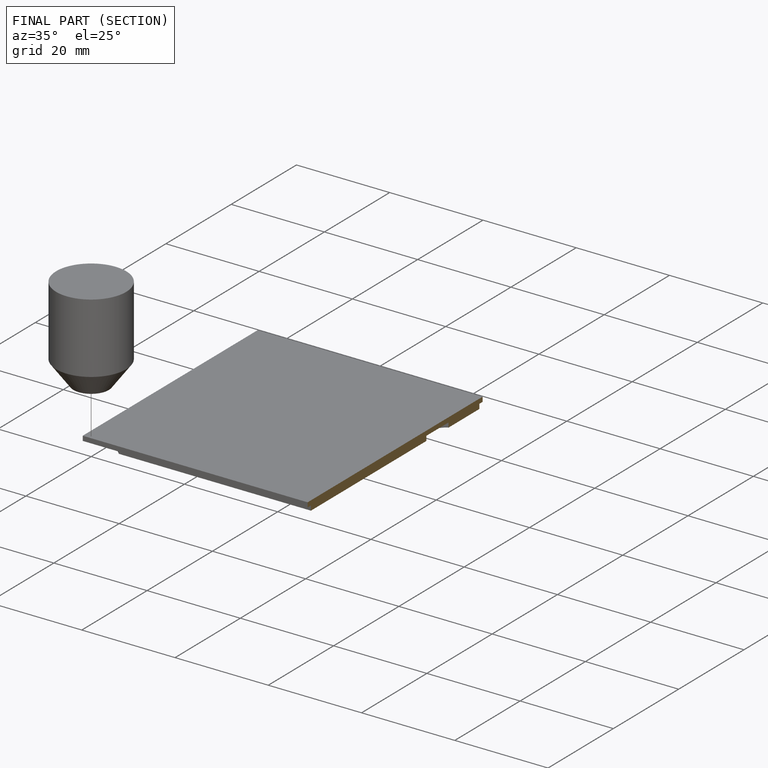
[diagram: finished part — half-section view (interior)]
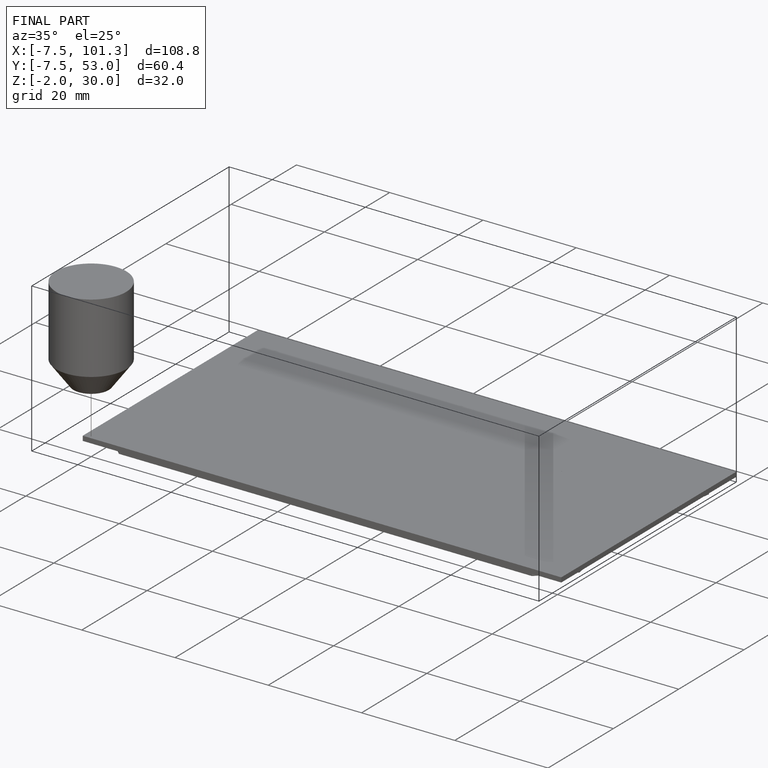
[diagram: finished part — iso view with bounding-box wireframe]
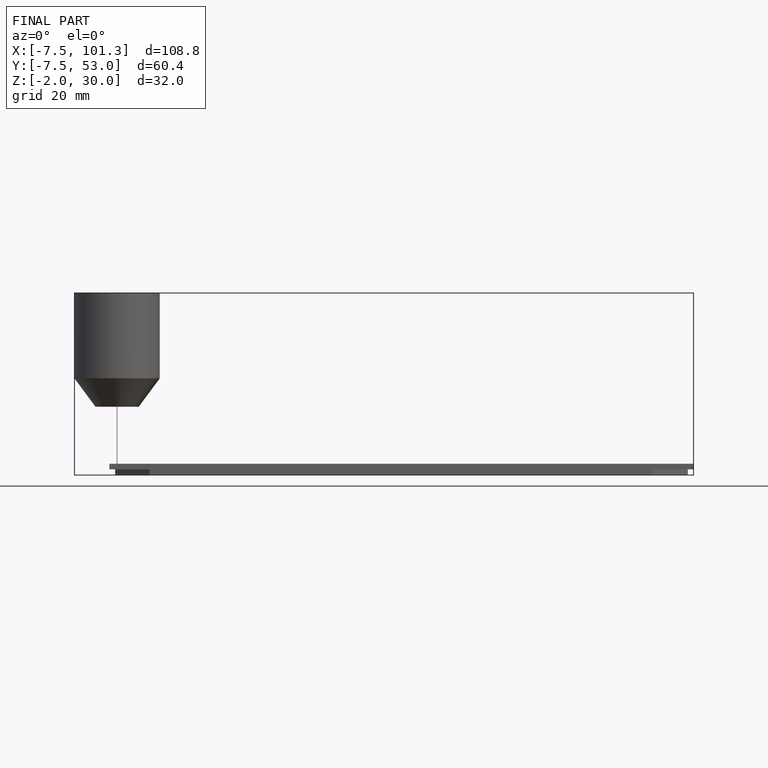
[diagram: finished part — front view with bounding-box wireframe]
